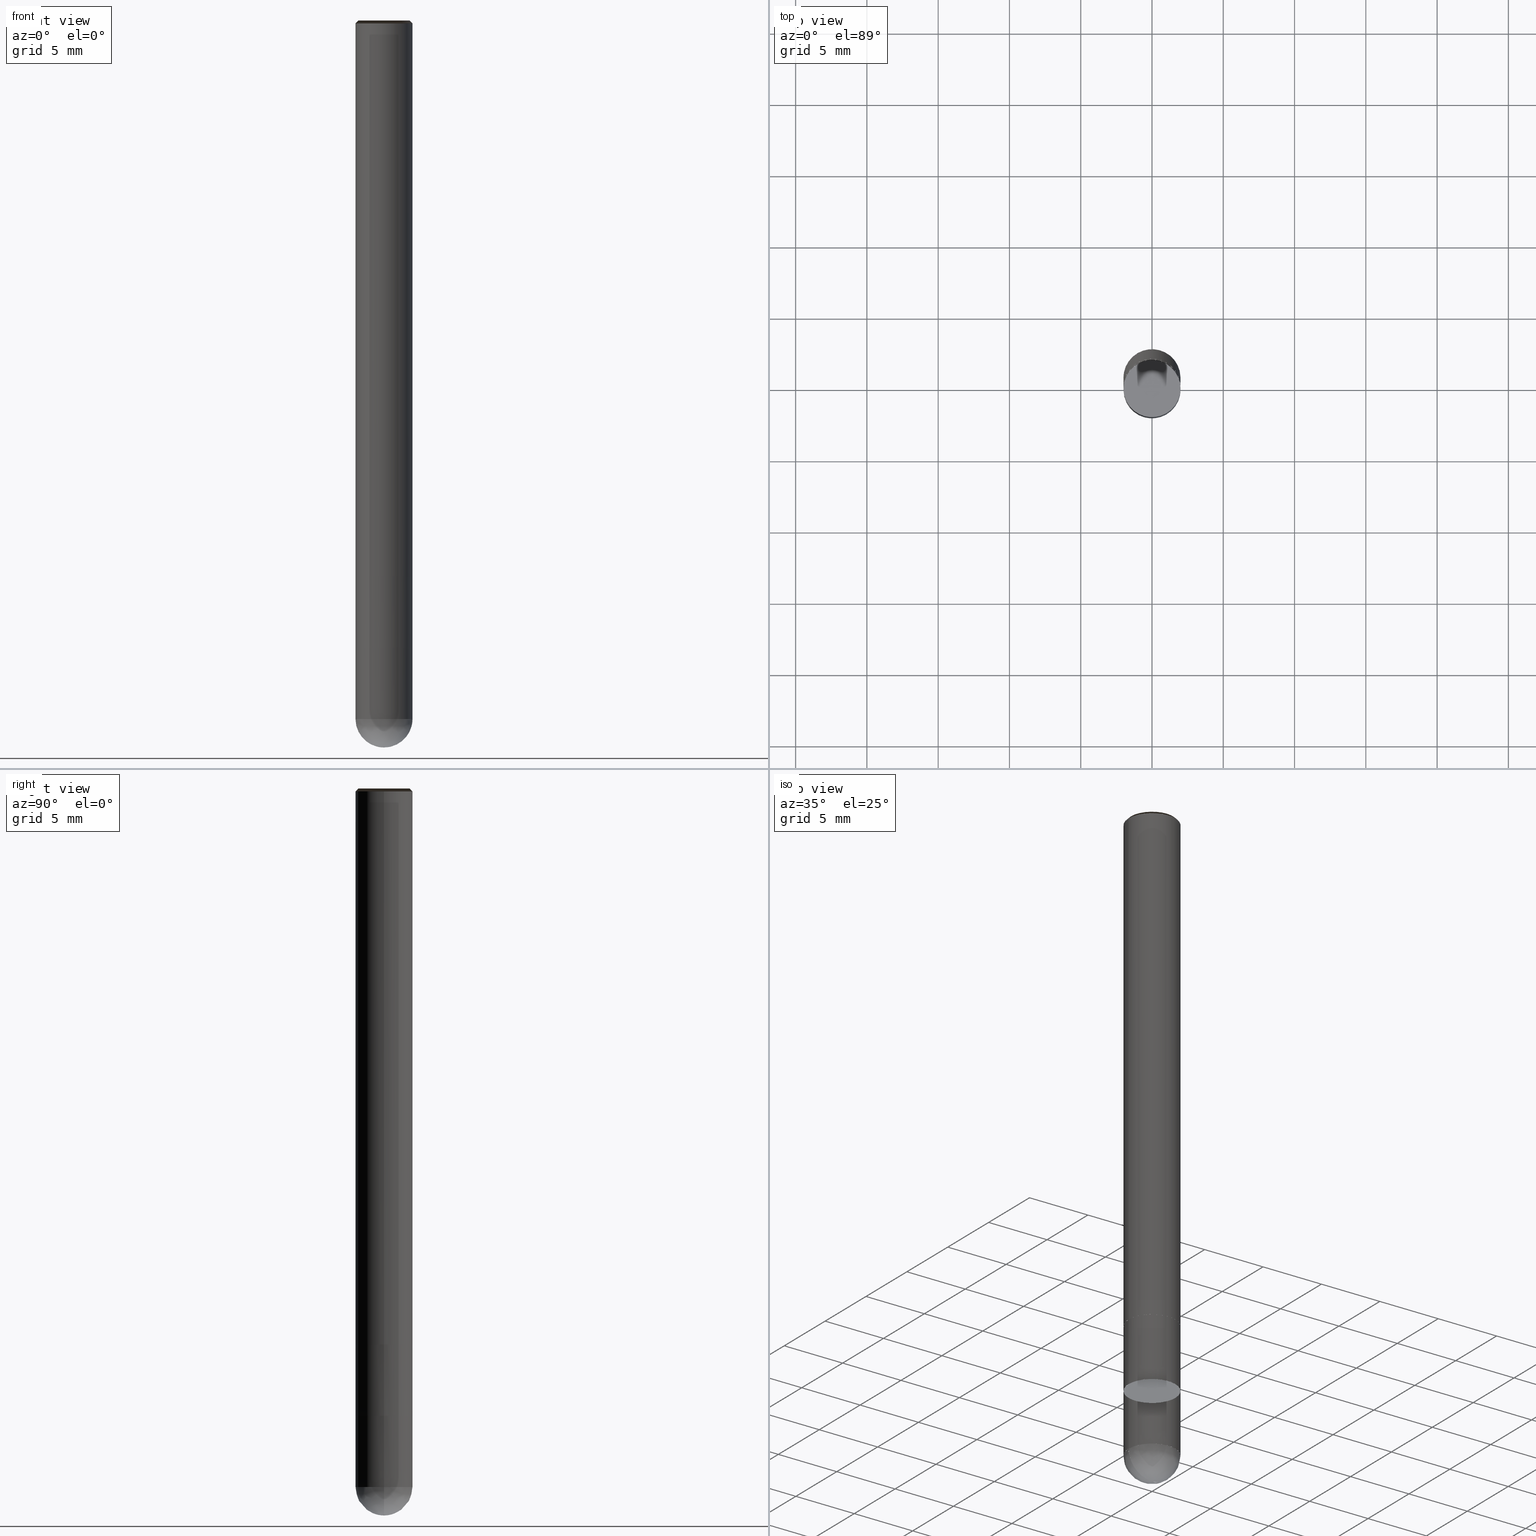
[diagram: canonical four-view strip — front | top / right | iso, engineering-drawing reading convention]
A machine part, canonical four-view strip (front | top / right | iso — engineering-drawing reading convention). The complete STEP part file that produces these views, byte-faithful:
ISO-10303-21;
HEADER;
/* Generated by ISBE GmbH (www.isbe.de) */
/* OPTION: using custom schema-name function */

FILE_DESCRIPTION(
/* description */ (''),
/* implementation_level */ '2;1');

FILE_NAME(
/*name*/ 'Drawing No  1240400   Issue  1',
/*time_stamp*/'2021-9-29T7:44:40',
/*author*/ ('ISBE GmbH'),
/*organization*/ ('ISBE GmbH'),
/*preprocessor_version*/ 'STEP IO v1.0',
/*originating_system*/ '',
/*authorisation*/ '');

FILE_SCHEMA (('AUTOMOTIVE_DESIGN'));
ENDSEC;

DATA;
#10=SHAPE_DEFINITION_REPRESENTATION(#11,#57);
#11=PRODUCT_DEFINITION_SHAPE('Document','',#13);
#12=PRODUCT_DEFINITION_CONTEXT('3D Mechanical Parts',#17,'design');
#13=PRODUCT_DEFINITION('A','First version',#14,#12);
#14=PRODUCT_DEFINITION_FORMATION_WITH_SPECIFIED_SOURCE('A','First version',#19,.MADE.);
#15=PRODUCT_RELATED_PRODUCT_CATEGORY('tool','tool',(#19));
#16=APPLICATION_PROTOCOL_DEFINITION('Draft International Standard', 'automotive_design',1999,#17);
#17=APPLICATION_CONTEXT('data for automotive mechanical design processes');
#18=PRODUCT_CONTEXT('3D Mechanical Parts',#17,'mechanical');
#19=PRODUCT('Document','Document','ISBE converted to STEP',(#18));
#20=(
LENGTH_UNIT()
NAMED_UNIT(*)
SI_UNIT(.MILLI.,.METRE.)
);
#21=(
NAMED_UNIT(*)
PLANE_ANGLE_UNIT()
SI_UNIT($,.RADIAN.)
);
#22=DIMENSIONAL_EXPONENTS(0.,0.,0.,0.,0.,0.,0.);
#23=PLANE_ANGLE_MEASURE_WITH_UNIT(PLANE_ANGLE_MEASURE(0.01745329252),#21);
#24=(
CONVERSION_BASED_UNIT('DEGREES',#23)
NAMED_UNIT(#22)
PLANE_ANGLE_UNIT()
);
#25=(
NAMED_UNIT(*)
SI_UNIT($,.STERADIAN.)
SOLID_ANGLE_UNIT()
);
#26=UNCERTAINTY_MEASURE_WITH_UNIT(LENGTH_MEASURE(0.001),#20, 'DISTANCE_ACCURACY_VALUE', 'Maximum model space distance between geometric entities at asserted connectivities');
#27=(
GEOMETRIC_REPRESENTATION_CONTEXT(3)
GLOBAL_UNCERTAINTY_ASSIGNED_CONTEXT((#26))
GLOBAL_UNIT_ASSIGNED_CONTEXT((#25,#24,#20))
REPRESENTATION_CONTEXT('ID1','3D')
);
#28=CARTESIAN_POINT('',(0.0,0.0,0.0));
#29=DIRECTION('',(1.0,0.0,0.0));
#30=DIRECTION('',(0.0,0.0,1.0));
#31=AXIS2_PLACEMENT_3D('',#28,#30,#29);
#32=CARTESIAN_POINT('',(0.0,0.0,0.0));
#33=DIRECTION('',(1.0,0.0,0.0));
#34=DIRECTION('',(0.0,0.0,1.0));
#35=AXIS2_PLACEMENT_3D('',#32,#34,#33);
#36=CARTESIAN_POINT('',(0.0,0.0,0.0));
#37=DIRECTION('',(1.0,0.0,0.0));
#38=DIRECTION('',(0.0,0.0,1.0));
#39=AXIS2_PLACEMENT_3D('',#36,#38,#37);
#40=CARTESIAN_POINT('',(0.0,0.0,0.0));
#41=DIRECTION('',(0.0,0.0,1.0));
#42=DIRECTION('',(1.0,0.0,0.0));
#43=AXIS2_PLACEMENT_3D('MCS',#40,#42,#41);
#44=CARTESIAN_POINT('',(0.0,0.0,39.0));
#45=DIRECTION('',(0.0,0.0,1.0));
#46=DIRECTION('',(1.0,0.0,0.0));
#47=AXIS2_PLACEMENT_3D('PCS',#44,#46,#45);
#48=CARTESIAN_POINT('',(0.0,0.0,-12.0));
#49=DIRECTION('',(0.0,0.0,1.0));
#50=DIRECTION('',(1.0,0.0,0.0));
#51=AXIS2_PLACEMENT_3D('CIP',#48,#50,#49);
#52=CARTESIAN_POINT('',(0.0,-2.0,-12.0));
#53=DIRECTION('',(0.0,0.0,1.0));
#54=DIRECTION('',(1.0,0.0,0.0));
#55=AXIS2_PLACEMENT_3D('CRP',#52,#54,#53);
#57=SHAPE_REPRESENTATION('Document',(#31,#35,#39,#43,#47,#51,#55),#27);
#58=DIRECTION('',(1.0,0.0,0.0));
#59=DIRECTION('',(0.0,0.0,1.0));
#60=CARTESIAN_POINT('',(-0.01999898138,-0.000201850881,-11.999679401865));
#61=CARTESIAN_POINT('',(-0.019371841542,-0.0611060247,-11.998972432401));
#62=CARTESIAN_POINT('',(-0.018582915878,-0.126785833558,-11.995890785501));
#63=CARTESIAN_POINT('',(-0.017578842118,-0.191239824115,-11.990758225898));
#64=CARTESIAN_POINT('',(-0.016239636919,-0.255238218366,-11.983580027646));
#65=CARTESIAN_POINT('',(-0.014453844092,-0.318872376304,-11.974363566829));
#66=CARTESIAN_POINT('',(-0.012113404118,-0.382125307653,-11.963118313982));
#67=CARTESIAN_POINT('',(-0.009113459438,-0.444948546522,-11.949855824364));
#68=CARTESIAN_POINT('',(-0.005352734971,-0.507280928068,-11.934589726078));
#69=CARTESIAN_POINT('',(-0.000734037573,-0.569054699836,-11.917335706073));
#70=CARTESIAN_POINT('',(0.004835216595,-0.630197887131,-11.898111494021));
#71=CARTESIAN_POINT('',(0.011442472882,-0.690635325679,-11.8769368441));
#72=CARTESIAN_POINT('',(0.019169517323,-0.750289163863,-11.853833514692));
#73=CARTESIAN_POINT('',(0.028091969592,-0.80907914367,-11.828825246032));
#74=CARTESIAN_POINT('',(0.03827879361,-0.866922793703,-11.801937735805));
#75=CARTESIAN_POINT('',(0.049791829162,-0.923735597184,-11.773198612746));
#76=CARTESIAN_POINT('',(0.062685347743,-0.97943116683,-11.742637408247));
#77=CARTESIAN_POINT('',(0.077005635852,-1.033921443614,-11.710285526011));
#78=CARTESIAN_POINT('',(0.092790609027,-1.087116928684,-11.676176209784));
#79=CARTESIAN_POINT('',(0.110069459952,-1.138926953383,-11.640344509194));
#80=CARTESIAN_POINT('',(0.128862343995,-1.189259989673,-11.602827243736));
#81=CARTESIAN_POINT('',(0.149180105555,-1.238024001461,-11.563662964936));
#82=CARTESIAN_POINT('',(0.171024048528,-1.285126836059,-11.522891916738));
#83=CARTESIAN_POINT('',(0.194385754122,-1.330476653977,-11.480555994151));
#84=CARTESIAN_POINT('',(0.219246949088,-1.373982394419,-11.436698700195));
#85=CARTESIAN_POINT('',(0.245579427234,-1.41555427309,-11.391365101207));
#86=CARTESIAN_POINT('',(0.273345026838,-1.455104308329,-11.344601780523));
#87=CARTESIAN_POINT('',(0.302495666221,-1.492546870951,-11.296456790616));
#88=CARTESIAN_POINT('',(0.332973439389,-1.527799252708,-11.246979603717));
#89=CARTESIAN_POINT('',(0.364710773218,-1.560782247836,-11.196221060982));
#90=CARTESIAN_POINT('',(0.397630647142,-1.591420741758,-11.144233320244));
#91=CARTESIAN_POINT('',(0.431646875815,-1.619644300717,-11.091069802421));
#92=CARTESIAN_POINT('',(0.466664454604,-1.645387755908,-11.036785136621));
#93=CARTESIAN_POINT('',(0.502579967198,-1.668591775478,-10.981435104008));
#94=CARTESIAN_POINT('',(0.539282053968,-1.689203417742,-10.925076580482));
#95=CARTESIAN_POINT('',(0.576651939074,-1.707176658955,-10.867767478235));
#96=CARTESIAN_POINT('',(0.61456401367,-1.722472889083,-10.809566686245));
#97=CARTESIAN_POINT('',(0.652886471892,-1.735061369236,-10.750534009759));
#98=CARTESIAN_POINT('',(0.691481995705,-1.74491964467,-10.690730108843));
#99=CARTESIAN_POINT('',(0.730208484048,-1.752033907651,-10.630216436047));
#100=CARTESIAN_POINT('',(0.768919821176,-1.756399304938,-10.569055173262));
#101=CARTESIAN_POINT('',(0.807466678542,-1.758020185121,-10.507309167819));
#102=CARTESIAN_POINT('',(0.845697344116,-1.756910281705,-10.445041867913));
#103=CARTESIAN_POINT('',(0.883458572612,-1.753092828452,-10.382317257403));
#104=CARTESIAN_POINT('',(0.920596449785,-1.746600604221,-10.319199790067));
#105=CARTESIAN_POINT('',(0.956957263684,-1.737475905318,-10.255754323369));
#106=CARTESIAN_POINT('',(0.992388375618,-1.725770444155,-10.192046051815));
#107=CARTESIAN_POINT('',(1.02673908347,-1.711545173848,-10.128140439961));
#108=CARTESIAN_POINT('',(1.059861470061,-1.694870039201,-10.064103155143));
#109=CARTESIAN_POINT('',(1.091611229346,-1.67582365539,-10.0));
#110=CARTESIAN_POINT('',(1.12971572387,-1.650376436829,-9.920634920635));
#111=CARTESIAN_POINT('',(1.167227255058,-1.624062971393,-9.84126984127));
#112=CARTESIAN_POINT('',(1.20412613392,-1.59689707045,-9.761904761905));
#113=CARTESIAN_POINT('',(1.240392993033,-1.568892992793,-9.68253968254));
#114=CARTESIAN_POINT('',(1.276008796708,-1.540065437156,-9.603174603175));
#115=CARTESIAN_POINT('',(1.31095485098,-1.510429534501,-9.52380952381));
#116=CARTESIAN_POINT('',(1.34521281342,-1.480000840071,-9.444444444444));
#117=CARTESIAN_POINT('',(1.378764702768,-1.448795325228,-9.365079365079));
#118=CARTESIAN_POINT('',(1.41159290836,-1.416829369073,-9.285714285714));
#119=CARTESIAN_POINT('',(1.443680199384,-1.384119749844,-9.206349206349));
#120=CARTESIAN_POINT('',(1.475009733914,-1.350683636112,-9.126984126984));
#121=CARTESIAN_POINT('',(1.505565067755,-1.31653857777,-9.047619047619));
#122=CARTESIAN_POINT('',(1.535330163075,-1.281702496819,-8.968253968254));
#123=CARTESIAN_POINT('',(1.564289396818,-1.246193677966,-8.888888888889));
#124=CARTESIAN_POINT('',(1.59242756891,-1.21003075902,-8.809523809524));
#125=CARTESIAN_POINT('',(1.619729910233,-1.173232721116,-8.730158730159));
#126=CARTESIAN_POINT('',(1.646182090379,-1.135818878746,-8.650793650794));
#127=CARTESIAN_POINT('',(1.671770225171,-1.097808869627,-8.571428571429));
#128=CARTESIAN_POINT('',(1.696480883951,-1.05922264439,-8.492063492063));
#129=CARTESIAN_POINT('',(1.720301096629,-1.02008045611,-8.412698412698));
#130=CARTESIAN_POINT('',(1.74321836049,-0.980402849675,-8.333333333333));
#131=CARTESIAN_POINT('',(1.765220646759,-0.940210651001,-8.253968253968));
#132=CARTESIAN_POINT('',(1.786296406912,-0.899524956103,-8.174603174603));
#133=CARTESIAN_POINT('',(1.806434578739,-0.858367120022,-8.095238095238));
#134=CARTESIAN_POINT('',(1.825624592149,-0.816758745617,-8.015873015873));
#135=CARTESIAN_POINT('',(1.843856374719,-0.774721672221,-7.936507936508));
#136=CARTESIAN_POINT('',(1.861120356981,-0.732277964185,-7.857142857143));
#137=CARTESIAN_POINT('',(1.877407477444,-0.689449899294,-7.777777777778));
#138=CARTESIAN_POINT('',(1.892709187352,-0.646259957071,-7.698412698413));
#139=CARTESIAN_POINT('',(1.907017455168,-0.602730806982,-7.619047619048));
#140=CARTESIAN_POINT('',(1.920324770792,-0.558885296536,-7.539682539683));
#141=CARTESIAN_POINT('',(1.932624149501,-0.514746439293,-7.460317460317));
#142=CARTESIAN_POINT('',(1.943909135619,-0.470337402784,-7.380952380952));
#143=CARTESIAN_POINT('',(1.9541738059,-0.425681496351,-7.301587301587));
#144=CARTESIAN_POINT('',(1.96341277264,-0.380802158912,-7.222222222222));
#145=CARTESIAN_POINT('',(1.971621186507,-0.335722946662,-7.142857142857));
#146=CARTESIAN_POINT('',(1.978794739082,-0.290467520702,-7.063492063492));
#147=CARTESIAN_POINT('',(1.984929665121,-0.245059634626,-6.984126984127));
#148=CARTESIAN_POINT('',(1.990022744535,-0.199523122052,-6.904761904762));
#149=CARTESIAN_POINT('',(1.994071304077,-0.153881884109,-6.825396825397));
#150=CARTESIAN_POINT('',(1.997073218745,-0.108159876895,-6.746031746032));
#151=CARTESIAN_POINT('',(1.9990269129,-0.062381098902,-6.666666666667));
#152=CARTESIAN_POINT('',(1.99993136109,-0.016569578421,-6.587301587302));
#153=CARTESIAN_POINT('',(1.999786088589,0.029250639074,-6.507936507937));
#154=CARTESIAN_POINT('',(1.998591171648,0.075055503541,-6.428571428571));
#155=CARTESIAN_POINT('',(1.996347237452,0.120820972999,-6.349206349206));
#156=CARTESIAN_POINT('',(1.993055463795,0.166523026142,-6.269841269841));
#157=CARTESIAN_POINT('',(1.988717578457,0.212137674953,-6.190476190476));
#158=CARTESIAN_POINT('',(1.983335858301,0.25764097729,-6.111111111111));
#159=CARTESIAN_POINT('',(1.976913128074,0.303009049453,-6.031746031746));
#160=CARTESIAN_POINT('',(1.969452758928,0.348218078723,-5.952380952381));
#161=CARTESIAN_POINT('',(1.960958666651,0.39324433586,-5.873015873016));
#162=CARTESIAN_POINT('',(1.951435309607,0.438064187555,-5.793650793651));
#163=CARTESIAN_POINT('',(1.940887686401,0.482654108838,-5.714285714286));
#164=CARTESIAN_POINT('',(1.929321333251,0.526990695425,-5.634920634921));
#165=CARTESIAN_POINT('',(1.916742321085,0.571050676,-5.555555555556));
#166=CARTESIAN_POINT('',(1.903157252356,0.614810924434,-5.47619047619));
#167=CARTESIAN_POINT('',(1.888573257572,0.658248471918,-5.396825396825));
#168=CARTESIAN_POINT('',(1.872997991556,0.701340519025,-5.31746031746));
#169=CARTESIAN_POINT('',(1.856439629428,0.744064447672,-5.238095238095));
#170=CARTESIAN_POINT('',(1.838906862314,0.786397832992,-5.15873015873));
#171=CARTESIAN_POINT('',(1.820408892784,0.828318455108,-5.079365079365));
#172=CARTESIAN_POINT('',(1.800955430022,0.869804310793,-5.0));
#173=CARTESIAN_POINT('',(0.01999898138,0.000201850881,-11.999679401865));
#174=CARTESIAN_POINT('',(0.019371841542,0.0611060247,-11.998972432401));
#175=CARTESIAN_POINT('',(0.018582915878,0.126785833558,-11.995890785501));
#176=CARTESIAN_POINT('',(0.017578842118,0.191239824115,-11.990758225898));
#177=CARTESIAN_POINT('',(0.016239636919,0.255238218366,-11.983580027646));
#178=CARTESIAN_POINT('',(0.014453844092,0.318872376304,-11.974363566829));
#179=CARTESIAN_POINT('',(0.012113404118,0.382125307653,-11.963118313982));
#180=CARTESIAN_POINT('',(0.009113459438,0.444948546522,-11.949855824364));
#181=CARTESIAN_POINT('',(0.005352734971,0.507280928068,-11.934589726078));
#182=CARTESIAN_POINT('',(0.000734037573,0.569054699836,-11.917335706073));
#183=CARTESIAN_POINT('',(-0.004835216595,0.630197887131,-11.898111494021));
#184=CARTESIAN_POINT('',(-0.011442472882,0.690635325679,-11.8769368441));
#185=CARTESIAN_POINT('',(-0.019169517323,0.750289163863,-11.853833514692));
#186=CARTESIAN_POINT('',(-0.028091969592,0.80907914367,-11.828825246032));
#187=CARTESIAN_POINT('',(-0.03827879361,0.866922793703,-11.801937735805));
#188=CARTESIAN_POINT('',(-0.049791829162,0.923735597184,-11.773198612746));
#189=CARTESIAN_POINT('',(-0.062685347743,0.97943116683,-11.742637408247));
#190=CARTESIAN_POINT('',(-0.077005635852,1.033921443614,-11.710285526011));
#191=CARTESIAN_POINT('',(-0.092790609027,1.087116928684,-11.676176209784));
#192=CARTESIAN_POINT('',(-0.110069459952,1.138926953383,-11.640344509194));
#193=CARTESIAN_POINT('',(-0.128862343995,1.189259989673,-11.602827243736));
#194=CARTESIAN_POINT('',(-0.149180105555,1.238024001461,-11.563662964936));
#195=CARTESIAN_POINT('',(-0.171024048528,1.285126836059,-11.522891916738));
#196=CARTESIAN_POINT('',(-0.194385754122,1.330476653977,-11.480555994151));
#197=CARTESIAN_POINT('',(-0.219246949088,1.373982394419,-11.436698700195));
#198=CARTESIAN_POINT('',(-0.245579427234,1.41555427309,-11.391365101207));
#199=CARTESIAN_POINT('',(-0.273345026838,1.455104308329,-11.344601780523));
#200=CARTESIAN_POINT('',(-0.302495666221,1.492546870951,-11.296456790616));
#201=CARTESIAN_POINT('',(-0.332973439389,1.527799252708,-11.246979603717));
#202=CARTESIAN_POINT('',(-0.364710773218,1.560782247836,-11.196221060982));
#203=CARTESIAN_POINT('',(-0.397630647142,1.591420741758,-11.144233320244));
#204=CARTESIAN_POINT('',(-0.431646875815,1.619644300717,-11.091069802421));
#205=CARTESIAN_POINT('',(-0.466664454604,1.645387755908,-11.036785136621));
#206=CARTESIAN_POINT('',(-0.502579967198,1.668591775478,-10.981435104008));
#207=CARTESIAN_POINT('',(-0.539282053968,1.689203417742,-10.925076580482));
#208=CARTESIAN_POINT('',(-0.576651939074,1.707176658955,-10.867767478235));
#209=CARTESIAN_POINT('',(-0.61456401367,1.722472889083,-10.809566686245));
#210=CARTESIAN_POINT('',(-0.652886471892,1.735061369236,-10.750534009759));
#211=CARTESIAN_POINT('',(-0.691481995705,1.74491964467,-10.690730108843));
#212=CARTESIAN_POINT('',(-0.730208484048,1.752033907651,-10.630216436047));
#213=CARTESIAN_POINT('',(-0.768919821176,1.756399304938,-10.569055173262));
#214=CARTESIAN_POINT('',(-0.807466678542,1.758020185121,-10.507309167819));
#215=CARTESIAN_POINT('',(-0.845697344116,1.756910281705,-10.445041867913));
#216=CARTESIAN_POINT('',(-0.883458572612,1.753092828452,-10.382317257403));
#217=CARTESIAN_POINT('',(-0.920596449785,1.746600604221,-10.319199790067));
#218=CARTESIAN_POINT('',(-0.956957263684,1.737475905318,-10.255754323369));
#219=CARTESIAN_POINT('',(-0.992388375618,1.725770444155,-10.192046051815));
#220=CARTESIAN_POINT('',(-1.02673908347,1.711545173848,-10.128140439961));
#221=CARTESIAN_POINT('',(-1.059861470061,1.694870039201,-10.064103155143));
#222=CARTESIAN_POINT('',(-1.091611229346,1.67582365539,-10.0));
#223=CARTESIAN_POINT('',(-1.12971572387,1.650376436829,-9.920634920635));
#224=CARTESIAN_POINT('',(-1.167227255058,1.624062971393,-9.84126984127));
#225=CARTESIAN_POINT('',(-1.20412613392,1.59689707045,-9.761904761905));
#226=CARTESIAN_POINT('',(-1.240392993033,1.568892992793,-9.68253968254));
#227=CARTESIAN_POINT('',(-1.276008796708,1.540065437156,-9.603174603175));
#228=CARTESIAN_POINT('',(-1.31095485098,1.510429534501,-9.52380952381));
#229=CARTESIAN_POINT('',(-1.34521281342,1.480000840071,-9.444444444444));
#230=CARTESIAN_POINT('',(-1.378764702768,1.448795325228,-9.365079365079));
#231=CARTESIAN_POINT('',(-1.41159290836,1.416829369073,-9.285714285714));
#232=CARTESIAN_POINT('',(-1.443680199384,1.384119749844,-9.206349206349));
#233=CARTESIAN_POINT('',(-1.475009733914,1.350683636112,-9.126984126984));
#234=CARTESIAN_POINT('',(-1.505565067755,1.31653857777,-9.047619047619));
#235=CARTESIAN_POINT('',(-1.535330163075,1.281702496819,-8.968253968254));
#236=CARTESIAN_POINT('',(-1.564289396818,1.246193677966,-8.888888888889));
#237=CARTESIAN_POINT('',(-1.59242756891,1.21003075902,-8.809523809524));
#238=CARTESIAN_POINT('',(-1.619729910233,1.173232721116,-8.730158730159));
#239=CARTESIAN_POINT('',(-1.646182090379,1.135818878746,-8.650793650794));
#240=CARTESIAN_POINT('',(-1.671770225171,1.097808869627,-8.571428571429));
#241=CARTESIAN_POINT('',(-1.696480883951,1.05922264439,-8.492063492063));
#242=CARTESIAN_POINT('',(-1.720301096629,1.02008045611,-8.412698412698));
#243=CARTESIAN_POINT('',(-1.74321836049,0.980402849675,-8.333333333333));
#244=CARTESIAN_POINT('',(-1.765220646759,0.940210651001,-8.253968253968));
#245=CARTESIAN_POINT('',(-1.786296406912,0.899524956103,-8.174603174603));
#246=CARTESIAN_POINT('',(-1.806434578739,0.858367120022,-8.095238095238));
#247=CARTESIAN_POINT('',(-1.825624592149,0.816758745617,-8.015873015873));
#248=CARTESIAN_POINT('',(-1.843856374719,0.774721672221,-7.936507936508));
#249=CARTESIAN_POINT('',(-1.861120356981,0.732277964185,-7.857142857143));
#250=CARTESIAN_POINT('',(-1.877407477444,0.689449899294,-7.777777777778));
#251=CARTESIAN_POINT('',(-1.892709187352,0.646259957071,-7.698412698413));
#252=CARTESIAN_POINT('',(-1.907017455168,0.602730806982,-7.619047619048));
#253=CARTESIAN_POINT('',(-1.920324770792,0.558885296536,-7.539682539683));
#254=CARTESIAN_POINT('',(-1.932624149501,0.514746439293,-7.460317460317));
#255=CARTESIAN_POINT('',(-1.943909135619,0.470337402784,-7.380952380952));
#256=CARTESIAN_POINT('',(-1.9541738059,0.425681496351,-7.301587301587));
#257=CARTESIAN_POINT('',(-1.96341277264,0.380802158912,-7.222222222222));
#258=CARTESIAN_POINT('',(-1.971621186507,0.335722946662,-7.142857142857));
#259=CARTESIAN_POINT('',(-1.978794739082,0.290467520702,-7.063492063492));
#260=CARTESIAN_POINT('',(-1.984929665121,0.245059634626,-6.984126984127));
#261=CARTESIAN_POINT('',(-1.990022744535,0.199523122052,-6.904761904762));
#262=CARTESIAN_POINT('',(-1.994071304077,0.153881884109,-6.825396825397));
#263=CARTESIAN_POINT('',(-1.997073218745,0.108159876895,-6.746031746032));
#264=CARTESIAN_POINT('',(-1.9990269129,0.062381098902,-6.666666666667));
#265=CARTESIAN_POINT('',(-1.99993136109,0.016569578421,-6.587301587302));
#266=CARTESIAN_POINT('',(-1.999786088589,-0.029250639074,-6.507936507937));
#267=CARTESIAN_POINT('',(-1.998591171648,-0.075055503541,-6.428571428571));
#268=CARTESIAN_POINT('',(-1.996347237452,-0.120820972999,-6.349206349206));
#269=CARTESIAN_POINT('',(-1.993055463795,-0.166523026142,-6.269841269841));
#270=CARTESIAN_POINT('',(-1.988717578457,-0.212137674953,-6.190476190476));
#271=CARTESIAN_POINT('',(-1.983335858301,-0.25764097729,-6.111111111111));
#272=CARTESIAN_POINT('',(-1.976913128074,-0.303009049453,-6.031746031746));
#273=CARTESIAN_POINT('',(-1.969452758928,-0.348218078723,-5.952380952381));
#274=CARTESIAN_POINT('',(-1.960958666651,-0.39324433586,-5.873015873016));
#275=CARTESIAN_POINT('',(-1.951435309607,-0.438064187555,-5.793650793651));
#276=CARTESIAN_POINT('',(-1.940887686401,-0.482654108838,-5.714285714286));
#277=CARTESIAN_POINT('',(-1.929321333251,-0.526990695425,-5.634920634921));
#278=CARTESIAN_POINT('',(-1.916742321085,-0.571050676,-5.555555555556));
#279=CARTESIAN_POINT('',(-1.903157252356,-0.614810924434,-5.47619047619));
#280=CARTESIAN_POINT('',(-1.888573257572,-0.658248471918,-5.396825396825));
#281=CARTESIAN_POINT('',(-1.872997991556,-0.701340519025,-5.31746031746));
#282=CARTESIAN_POINT('',(-1.856439629428,-0.744064447672,-5.238095238095));
#283=CARTESIAN_POINT('',(-1.838906862314,-0.786397832992,-5.15873015873));
#284=CARTESIAN_POINT('',(-1.820408892784,-0.828318455108,-5.079365079365));
#285=CARTESIAN_POINT('',(-1.800955430022,-0.869804310793,-5.0));
#286=CARTESIAN_POINT('',(0.0,0.0,-12.0));
#287=CARTESIAN_POINT('',(2.0,0.0,-12.0));
#288=CARTESIAN_POINT('',(2.0,2.0,-12.0));
#289=CARTESIAN_POINT('',(0.0,2.0,-12.0));
#290=CARTESIAN_POINT('',(-2.0,2.0,-12.0));
#291=CARTESIAN_POINT('',(-2.0,0.0,-12.0));
#292=CARTESIAN_POINT('',(2.0,0.0,-10.0));
#293=CARTESIAN_POINT('',(2.0,2.0,-10.0));
#294=CARTESIAN_POINT('',(0.0,2.0,-10.0));
#295=CARTESIAN_POINT('',(-2.0,2.0,-10.0));
#296=CARTESIAN_POINT('',(-2.0,0.0,-10.0));
#297=CARTESIAN_POINT('',(2.0,0.0,-5.0));
#298=CARTESIAN_POINT('',(2.0,2.0,-5.0));
#299=CARTESIAN_POINT('',(0.0,2.0,-5.0));
#300=CARTESIAN_POINT('',(-2.0,2.0,-5.0));
#301=CARTESIAN_POINT('',(-2.0,0.0,-5.0));
#302=CARTESIAN_POINT('',(0.0,0.0,-5.0));
#303=CARTESIAN_POINT('',(-2.0,-2.0,-12.0));
#304=CARTESIAN_POINT('',(0.0,-2.0,-12.0));
#305=CARTESIAN_POINT('',(2.0,-2.0,-12.0));
#306=CARTESIAN_POINT('',(-2.0,-2.0,-10.0));
#307=CARTESIAN_POINT('',(0.0,-2.0,-10.0));
#308=CARTESIAN_POINT('',(2.0,-2.0,-10.0));
#309=CARTESIAN_POINT('',(-2.0,-2.0,-5.0));
#310=CARTESIAN_POINT('',(0.0,-2.0,-5.0));
#311=CARTESIAN_POINT('',(2.0,-2.0,-5.0));
#312=CARTESIAN_POINT('',(2.0,0.0,0.0));
#313=CARTESIAN_POINT('',(2.0,2.0,0.0));
#314=CARTESIAN_POINT('',(0.0,2.0,0.0));
#315=CARTESIAN_POINT('',(-2.0,2.0,0.0));
#316=CARTESIAN_POINT('',(-2.0,0.0,0.0));
#317=CARTESIAN_POINT('',(2.0,0.0,38.8));
#318=CARTESIAN_POINT('',(2.0,2.0,38.8));
#319=CARTESIAN_POINT('',(0.0,2.0,38.8));
#320=CARTESIAN_POINT('',(-2.0,2.0,38.8));
#321=CARTESIAN_POINT('',(-2.0,0.0,38.8));
#322=CARTESIAN_POINT('',(1.8,0.0,39.0));
#323=CARTESIAN_POINT('',(1.8,1.8,39.0));
#324=CARTESIAN_POINT('',(0.0,1.8,39.0));
#325=CARTESIAN_POINT('',(-1.8,1.8,39.0));
#326=CARTESIAN_POINT('',(-1.8,0.0,39.0));
#327=CARTESIAN_POINT('',(0.0,0.0,39.0));
#328=CARTESIAN_POINT('',(-2.0,-2.0,0.0));
#329=CARTESIAN_POINT('',(0.0,-2.0,0.0));
#330=CARTESIAN_POINT('',(2.0,-2.0,0.0));
#331=CARTESIAN_POINT('',(-2.0,-2.0,38.8));
#332=CARTESIAN_POINT('',(0.0,-2.0,38.8));
#333=CARTESIAN_POINT('',(2.0,-2.0,38.8));
#334=CARTESIAN_POINT('',(-1.8,-1.8,39.0));
#335=CARTESIAN_POINT('',(0.0,-1.8,39.0));
#336=CARTESIAN_POINT('',(1.8,-1.8,39.0));
#337=(
BOUNDED_CURVE()
B_SPLINE_CURVE(1,(#60,#61,#62,#63,#64,#65,#66,#67,#68,#69,#70,#71,#72,#73,#74,#75,#76,#77,#78,#79,#80,#81,#82,#83,#84,#85,#86,#87,#88,#89,#90,#91,#92,#93,#94,#95,#96,#97,#98,#99,#100,#101,#102,#103,#104,#105,#106,#107,#108,#109,#110,#111,#112,#113,#114,#115,#116,#117,#118,#119,#120,#121,#122,#123,#124,#125,#126,#127,#128,#129,#130,#131,#132,#133,#134,#135,#136,#137,#138,#139,#140,#141,#142,#143,#144,#145,#146,#147,#148,#149,#150,#151,#152,#153,#154,#155,#156,#157,#158,#159,#160,#161,#162,#163,#164,#165,#166,#167,#168,#169,#170,#171,#172),.UNSPECIFIED.,.F.,.F.)
B_SPLINE_CURVE_WITH_KNOTS((2,1,1,1,1,1,1,1,1,1,1,1,1,1,1,1,1,1,1,1,1,1,1,1,1,1,1,1,1,1,1,1,1,1,1,1,1,1,1,1,1,1,1,1,1,1,1,1,1,1,1,1,1,1,1,1,1,1,1,1,1,1,1,1,1,1,1,1,1,1,1,1,1,1,1,1,1,1,1,1,1,1,1,1,1,1,1,1,1,1,1,1,1,1,1,1,1,1,1,1,1,1,1,1,1,1,1,1,1,1,1,1,2),
(0.0,0.00668916786,0.013910434911,0.021011893315,0.028085655729,0.035149457838,0.042209356376,0.049268217894,0.056327822524,0.063389570626,0.070454770876,0.077524773997,0.084601039581,0.091685169401,0.098778921452,0.105884211393,0.113003104805,0.120137802231,0.127290618276,0.134463955759,0.14166027578,0.148882064516,0.156131797584,0.163411902785,0.170724722071,0.178072473543,0.185457214288,0.192880804793,0.200344875606,0.207850796875,0.215399651254,0.222992210607,0.230628916837,0.238309867046,0.246034803181,0.253803106181,0.261613794625,0.26946552775,0.277356612702,0.285285015805,0.29324837761,0.30124403145,0.30926902521,0.317320146008,0.325393947467,0.333486779256,0.341594818581,0.3497141033,0.357840566335,0.365970071067,0.376034038193,0.386098005319,0.396161972445,0.406225939571,0.416289906697,0.426353873823,0.436417840949,0.446481808075,0.456545775201,0.466609742326,0.476673709452,0.486737676578,0.496801643704,0.50686561083,0.516929577956,0.526993545082,0.537057512208,0.547121479334,0.55718544646,0.567249413586,0.577313380712,0.587377347837,0.597441314963,0.607505282089,0.617569249215,0.627633216341,0.637697183467,0.647761150593,0.657825117719,0.667889084845,0.677953051971,0.688017019097,0.698080986223,0.708144953348,0.718208920474,0.7282728876,0.738336854726,0.748400821852,0.758464788978,0.768528756104,0.77859272323,0.788656690356,0.798720657482,0.808784624608,0.818848591734,0.828912558859,0.838976525985,0.849040493111,0.859104460237,0.869168427363,0.879232394489,0.889296361615,0.899360328741,0.909424295867,0.919488262993,0.929552230119,0.939616197245,0.94968016437,0.959744131496,0.969808098622,0.979872065748,0.989936032874,1.0),.UNSPECIFIED.)
CURVE()
GEOMETRIC_REPRESENTATION_ITEM()
RATIONAL_B_SPLINE_CURVE((1.0,1.0,1.0,1.0,1.0,1.0,1.0,1.0,1.0,1.0,1.0,1.0,1.0,1.0,1.0,1.0,1.0,1.0,1.0,1.0,1.0,1.0,1.0,1.0,1.0,1.0,1.0,1.0,1.0,1.0,1.0,1.0,1.0,1.0,1.0,1.0,1.0,1.0,1.0,1.0,1.0,1.0,1.0,1.0,1.0,1.0,1.0,1.0,1.0,1.0,1.0,1.0,1.0,1.0,1.0,1.0,1.0,1.0,1.0,1.0,1.0,1.0,1.0,1.0,1.0,1.0,1.0,1.0,1.0,1.0,1.0,1.0,1.0,1.0,1.0,1.0,1.0,1.0,1.0,1.0,1.0,1.0,1.0,1.0,1.0,1.0,1.0,1.0,1.0,1.0,1.0,1.0,1.0,1.0,1.0,1.0,1.0,1.0,1.0,1.0,1.0,1.0,1.0,1.0,1.0,1.0,1.0,1.0,1.0,1.0,1.0,1.0,1.0))
REPRESENTATION_ITEM('')
);
#338=(
BOUNDED_CURVE()
B_SPLINE_CURVE(1,(#173,#174,#175,#176,#177,#178,#179,#180,#181,#182,#183,#184,#185,#186,#187,#188,#189,#190,#191,#192,#193,#194,#195,#196,#197,#198,#199,#200,#201,#202,#203,#204,#205,#206,#207,#208,#209,#210,#211,#212,#213,#214,#215,#216,#217,#218,#219,#220,#221,#222,#223,#224,#225,#226,#227,#228,#229,#230,#231,#232,#233,#234,#235,#236,#237,#238,#239,#240,#241,#242,#243,#244,#245,#246,#247,#248,#249,#250,#251,#252,#253,#254,#255,#256,#257,#258,#259,#260,#261,#262,#263,#264,#265,#266,#267,#268,#269,#270,#271,#272,#273,#274,#275,#276,#277,#278,#279,#280,#281,#282,#283,#284,#285),.UNSPECIFIED.,.F.,.F.)
B_SPLINE_CURVE_WITH_KNOTS((2,1,1,1,1,1,1,1,1,1,1,1,1,1,1,1,1,1,1,1,1,1,1,1,1,1,1,1,1,1,1,1,1,1,1,1,1,1,1,1,1,1,1,1,1,1,1,1,1,1,1,1,1,1,1,1,1,1,1,1,1,1,1,1,1,1,1,1,1,1,1,1,1,1,1,1,1,1,1,1,1,1,1,1,1,1,1,1,1,1,1,1,1,1,1,1,1,1,1,1,1,1,1,1,1,1,1,1,1,1,1,1,2),
(0.0,0.00668916786,0.013910434911,0.021011893315,0.028085655729,0.035149457838,0.042209356376,0.049268217894,0.056327822524,0.063389570626,0.070454770876,0.077524773997,0.084601039581,0.091685169401,0.098778921452,0.105884211393,0.113003104805,0.120137802231,0.127290618276,0.134463955759,0.14166027578,0.148882064516,0.156131797584,0.163411902785,0.170724722071,0.178072473543,0.185457214288,0.192880804793,0.200344875606,0.207850796875,0.215399651254,0.222992210607,0.230628916837,0.238309867046,0.246034803181,0.253803106181,0.261613794625,0.26946552775,0.277356612702,0.285285015805,0.29324837761,0.30124403145,0.30926902521,0.317320146008,0.325393947467,0.333486779256,0.341594818581,0.3497141033,0.357840566335,0.365970071067,0.376034038193,0.386098005319,0.396161972445,0.406225939571,0.416289906697,0.426353873823,0.436417840949,0.446481808075,0.456545775201,0.466609742326,0.476673709452,0.486737676578,0.496801643704,0.50686561083,0.516929577956,0.526993545082,0.537057512208,0.547121479334,0.55718544646,0.567249413586,0.577313380712,0.587377347837,0.597441314963,0.607505282089,0.617569249215,0.627633216341,0.637697183467,0.647761150593,0.657825117719,0.667889084845,0.677953051971,0.688017019097,0.698080986223,0.708144953348,0.718208920474,0.7282728876,0.738336854726,0.748400821852,0.758464788978,0.768528756104,0.77859272323,0.788656690356,0.798720657482,0.808784624608,0.818848591734,0.828912558859,0.838976525985,0.849040493111,0.859104460237,0.869168427363,0.879232394489,0.889296361615,0.899360328741,0.909424295867,0.919488262993,0.929552230119,0.939616197245,0.94968016437,0.959744131496,0.969808098622,0.979872065748,0.989936032874,1.0),.UNSPECIFIED.)
CURVE()
GEOMETRIC_REPRESENTATION_ITEM()
RATIONAL_B_SPLINE_CURVE((1.0,1.0,1.0,1.0,1.0,1.0,1.0,1.0,1.0,1.0,1.0,1.0,1.0,1.0,1.0,1.0,1.0,1.0,1.0,1.0,1.0,1.0,1.0,1.0,1.0,1.0,1.0,1.0,1.0,1.0,1.0,1.0,1.0,1.0,1.0,1.0,1.0,1.0,1.0,1.0,1.0,1.0,1.0,1.0,1.0,1.0,1.0,1.0,1.0,1.0,1.0,1.0,1.0,1.0,1.0,1.0,1.0,1.0,1.0,1.0,1.0,1.0,1.0,1.0,1.0,1.0,1.0,1.0,1.0,1.0,1.0,1.0,1.0,1.0,1.0,1.0,1.0,1.0,1.0,1.0,1.0,1.0,1.0,1.0,1.0,1.0,1.0,1.0,1.0,1.0,1.0,1.0,1.0,1.0,1.0,1.0,1.0,1.0,1.0,1.0,1.0,1.0,1.0,1.0,1.0,1.0,1.0,1.0,1.0,1.0,1.0,1.0,1.0))
REPRESENTATION_ITEM('')
);
#339=SHAPE_REPRESENTATION_RELATIONSHIP('','',#57,#340);
#340=GEOMETRICALLY_BOUNDED_WIREFRAME_SHAPE_REPRESENTATION('Curves',(#341,#31),#27);
#341=GEOMETRIC_CURVE_SET('CurveSet',(#337,#338));
#342=(
BOUNDED_SURFACE()
B_SPLINE_SURFACE(2,2,(
(#286,#286,#286,#286,#286),
(#287,#288,#289,#290,#291),
(#292,#293,#294,#295,#296)
), .UNSPECIFIED.,.F.,.F.,.F.)
B_SPLINE_SURFACE_WITH_KNOTS((3,3),(3,2,3),(
0.0,1.0),(
0.0,0.5,1.0), .UNSPECIFIED.)
GEOMETRIC_REPRESENTATION_ITEM()
RATIONAL_B_SPLINE_SURFACE(((1.0,0.707106781187,1.0,0.707106781187,1.0),
(0.707106781187,0.5,0.707106781187,0.5,0.707106781187),
(1.0,0.707106781187,1.0,0.707106781187,1.0)
))
REPRESENTATION_ITEM('')
SURFACE()
);
#343=(
BOUNDED_CURVE()
B_SPLINE_CURVE(2,(#296,#291,#286),.UNSPECIFIED.,.F.,.F.)
B_SPLINE_CURVE_WITH_KNOTS((3,3),
(0.0,1.0),.UNSPECIFIED.)
CURVE()
GEOMETRIC_REPRESENTATION_ITEM()
RATIONAL_B_SPLINE_CURVE((1.0,0.707106781187,1.0))
REPRESENTATION_ITEM('')
);
#344=(
BOUNDED_CURVE()
B_SPLINE_CURVE(2,(#286,#287,#292),.UNSPECIFIED.,.F.,.F.)
B_SPLINE_CURVE_WITH_KNOTS((3,3),
(0.0,1.0),.UNSPECIFIED.)
CURVE()
GEOMETRIC_REPRESENTATION_ITEM()
RATIONAL_B_SPLINE_CURVE((1.0,0.707106781187,1.0))
REPRESENTATION_ITEM('')
);
#345=(
BOUNDED_CURVE()
B_SPLINE_CURVE(2,(#292,#293,#294,#295,#296),.UNSPECIFIED.,.F.,.F.)
B_SPLINE_CURVE_WITH_KNOTS((3,2,3),
(0.0,0.5,1.0),.UNSPECIFIED.)
CURVE()
GEOMETRIC_REPRESENTATION_ITEM()
RATIONAL_B_SPLINE_CURVE((1.0,0.707106781187,1.0,0.707106781187,1.0))
REPRESENTATION_ITEM('')
);
#346=VERTEX_POINT('',#286);
#347=VERTEX_POINT('',#292);
#348=VERTEX_POINT('',#296);
#349=EDGE_CURVE('',#348,#346,#343,.T.);
#350=EDGE_CURVE('',#346,#347,#344,.T.);
#351=EDGE_CURVE('',#347,#348,#345,.T.);
#352=ORIENTED_EDGE('',*,*,#349,.T.);
#353=ORIENTED_EDGE('',*,*,#350,.T.);
#354=ORIENTED_EDGE('',*,*,#351,.T.);
#355=EDGE_LOOP('',(#352,#353,#354));
#356=FACE_OUTER_BOUND('',#355,.T.);
#357=ADVANCED_FACE('',(#356),#342,.T.);
#358=(
BOUNDED_SURFACE()
B_SPLINE_SURFACE(1,2,(
(#292,#293,#294,#295,#296),
(#297,#298,#299,#300,#301)
), .UNSPECIFIED.,.F.,.F.,.F.)
B_SPLINE_SURFACE_WITH_KNOTS((2,2),(3,2,3),(
0.0,1.0),(
0.0,0.5,1.0), .UNSPECIFIED.)
GEOMETRIC_REPRESENTATION_ITEM()
RATIONAL_B_SPLINE_SURFACE(((1.0,0.707106781187,1.0,0.707106781187,1.0),
(1.0,0.707106781187,1.0,0.707106781187,1.0)
))
REPRESENTATION_ITEM('')
SURFACE()
);
#359=(
BOUNDED_CURVE()
B_SPLINE_CURVE(2,(#296,#295,#294,#293,#292),.UNSPECIFIED.,.F.,.F.)
B_SPLINE_CURVE_WITH_KNOTS((3,2,3),
(0.0,0.5,1.0),.UNSPECIFIED.)
CURVE()
GEOMETRIC_REPRESENTATION_ITEM()
RATIONAL_B_SPLINE_CURVE((1.0,0.707106781187,1.0,0.707106781187,1.0))
REPRESENTATION_ITEM('')
);
#360=(
BOUNDED_CURVE()
B_SPLINE_CURVE(1,(#292,#297),.UNSPECIFIED.,.F.,.F.)
B_SPLINE_CURVE_WITH_KNOTS((2,2),
(0.0,1.0),.UNSPECIFIED.)
CURVE()
GEOMETRIC_REPRESENTATION_ITEM()
RATIONAL_B_SPLINE_CURVE((1.0,1.0))
REPRESENTATION_ITEM('')
);
#361=(
BOUNDED_CURVE()
B_SPLINE_CURVE(2,(#297,#298,#299,#300,#301),.UNSPECIFIED.,.F.,.F.)
B_SPLINE_CURVE_WITH_KNOTS((3,2,3),
(0.0,0.5,1.0),.UNSPECIFIED.)
CURVE()
GEOMETRIC_REPRESENTATION_ITEM()
RATIONAL_B_SPLINE_CURVE((1.0,0.707106781187,1.0,0.707106781187,1.0))
REPRESENTATION_ITEM('')
);
#362=(
BOUNDED_CURVE()
B_SPLINE_CURVE(1,(#301,#296),.UNSPECIFIED.,.F.,.F.)
B_SPLINE_CURVE_WITH_KNOTS((2,2),
(0.0,1.0),.UNSPECIFIED.)
CURVE()
GEOMETRIC_REPRESENTATION_ITEM()
RATIONAL_B_SPLINE_CURVE((1.0,1.0))
REPRESENTATION_ITEM('')
);
#363=VERTEX_POINT('',#292);
#364=VERTEX_POINT('',#296);
#365=VERTEX_POINT('',#297);
#366=VERTEX_POINT('',#301);
#367=EDGE_CURVE('',#364,#363,#359,.T.);
#368=EDGE_CURVE('',#363,#365,#360,.T.);
#369=EDGE_CURVE('',#365,#366,#361,.T.);
#370=EDGE_CURVE('',#366,#364,#362,.T.);
#371=ORIENTED_EDGE('',*,*,#367,.T.);
#372=ORIENTED_EDGE('',*,*,#368,.T.);
#373=ORIENTED_EDGE('',*,*,#369,.T.);
#374=ORIENTED_EDGE('',*,*,#370,.T.);
#375=EDGE_LOOP('',(#371,#372,#373,#374));
#376=FACE_OUTER_BOUND('',#375,.T.);
#377=ADVANCED_FACE('',(#376),#358,.T.);
#378=(
BOUNDED_SURFACE()
B_SPLINE_SURFACE(1,2,(
(#297,#298,#299,#300,#301),
(#302,#302,#302,#302,#302)
), .UNSPECIFIED.,.F.,.F.,.F.)
B_SPLINE_SURFACE_WITH_KNOTS((2,2),(3,2,3),(
0.0,1.0),(
0.0,0.5,1.0), .UNSPECIFIED.)
GEOMETRIC_REPRESENTATION_ITEM()
RATIONAL_B_SPLINE_SURFACE(((1.0,0.707106781187,1.0,0.707106781187,1.0),
(1.0,0.707106781187,1.0,0.707106781187,1.0)
))
REPRESENTATION_ITEM('')
SURFACE()
);
#379=(
BOUNDED_CURVE()
B_SPLINE_CURVE(2,(#301,#300,#299,#298,#297),.UNSPECIFIED.,.F.,.F.)
B_SPLINE_CURVE_WITH_KNOTS((3,2,3),
(0.0,0.5,1.0),.UNSPECIFIED.)
CURVE()
GEOMETRIC_REPRESENTATION_ITEM()
RATIONAL_B_SPLINE_CURVE((1.0,0.707106781187,1.0,0.707106781187,1.0))
REPRESENTATION_ITEM('')
);
#380=(
BOUNDED_CURVE()
B_SPLINE_CURVE(1,(#297,#302),.UNSPECIFIED.,.F.,.F.)
B_SPLINE_CURVE_WITH_KNOTS((2,2),
(0.0,1.0),.UNSPECIFIED.)
CURVE()
GEOMETRIC_REPRESENTATION_ITEM()
RATIONAL_B_SPLINE_CURVE((1.0,1.0))
REPRESENTATION_ITEM('')
);
#381=(
BOUNDED_CURVE()
B_SPLINE_CURVE(1,(#302,#301),.UNSPECIFIED.,.F.,.F.)
B_SPLINE_CURVE_WITH_KNOTS((2,2),
(0.0,1.0),.UNSPECIFIED.)
CURVE()
GEOMETRIC_REPRESENTATION_ITEM()
RATIONAL_B_SPLINE_CURVE((1.0,1.0))
REPRESENTATION_ITEM('')
);
#382=VERTEX_POINT('',#297);
#383=VERTEX_POINT('',#301);
#384=VERTEX_POINT('',#302);
#385=EDGE_CURVE('',#383,#382,#379,.T.);
#386=EDGE_CURVE('',#382,#384,#380,.T.);
#387=EDGE_CURVE('',#384,#383,#381,.T.);
#388=ORIENTED_EDGE('',*,*,#385,.T.);
#389=ORIENTED_EDGE('',*,*,#386,.T.);
#390=ORIENTED_EDGE('',*,*,#387,.T.);
#391=EDGE_LOOP('',(#388,#389,#390));
#392=FACE_OUTER_BOUND('',#391,.T.);
#393=ADVANCED_FACE('',(#392),#378,.T.);
#394=(
BOUNDED_SURFACE()
B_SPLINE_SURFACE(2,2,(
(#286,#286,#286,#286,#286),
(#291,#303,#304,#305,#287),
(#296,#306,#307,#308,#292)
), .UNSPECIFIED.,.F.,.F.,.F.)
B_SPLINE_SURFACE_WITH_KNOTS((3,3),(3,2,3),(
0.0,1.0),(
0.0,0.5,1.0), .UNSPECIFIED.)
GEOMETRIC_REPRESENTATION_ITEM()
RATIONAL_B_SPLINE_SURFACE(((1.0,0.707106781187,1.0,0.707106781187,1.0),
(0.707106781187,0.5,0.707106781187,0.5,0.707106781187),
(1.0,0.707106781187,1.0,0.707106781187,1.0)
))
REPRESENTATION_ITEM('')
SURFACE()
);
#395=(
BOUNDED_CURVE()
B_SPLINE_CURVE(2,(#292,#287,#286),.UNSPECIFIED.,.F.,.F.)
B_SPLINE_CURVE_WITH_KNOTS((3,3),
(0.0,1.0),.UNSPECIFIED.)
CURVE()
GEOMETRIC_REPRESENTATION_ITEM()
RATIONAL_B_SPLINE_CURVE((1.0,0.707106781187,1.0))
REPRESENTATION_ITEM('')
);
#396=(
BOUNDED_CURVE()
B_SPLINE_CURVE(2,(#286,#291,#296),.UNSPECIFIED.,.F.,.F.)
B_SPLINE_CURVE_WITH_KNOTS((3,3),
(0.0,1.0),.UNSPECIFIED.)
CURVE()
GEOMETRIC_REPRESENTATION_ITEM()
RATIONAL_B_SPLINE_CURVE((1.0,0.707106781187,1.0))
REPRESENTATION_ITEM('')
);
#397=(
BOUNDED_CURVE()
B_SPLINE_CURVE(2,(#296,#306,#307,#308,#292),.UNSPECIFIED.,.F.,.F.)
B_SPLINE_CURVE_WITH_KNOTS((3,2,3),
(0.0,0.5,1.0),.UNSPECIFIED.)
CURVE()
GEOMETRIC_REPRESENTATION_ITEM()
RATIONAL_B_SPLINE_CURVE((1.0,0.707106781187,1.0,0.707106781187,1.0))
REPRESENTATION_ITEM('')
);
#398=VERTEX_POINT('',#286);
#399=VERTEX_POINT('',#292);
#400=VERTEX_POINT('',#296);
#401=EDGE_CURVE('',#399,#398,#395,.T.);
#402=EDGE_CURVE('',#398,#400,#396,.T.);
#403=EDGE_CURVE('',#400,#399,#397,.T.);
#404=ORIENTED_EDGE('',*,*,#401,.T.);
#405=ORIENTED_EDGE('',*,*,#402,.T.);
#406=ORIENTED_EDGE('',*,*,#403,.T.);
#407=EDGE_LOOP('',(#404,#405,#406));
#408=FACE_OUTER_BOUND('',#407,.T.);
#409=ADVANCED_FACE('',(#408),#394,.T.);
#410=(
BOUNDED_SURFACE()
B_SPLINE_SURFACE(1,2,(
(#296,#306,#307,#308,#292),
(#301,#309,#310,#311,#297)
), .UNSPECIFIED.,.F.,.F.,.F.)
B_SPLINE_SURFACE_WITH_KNOTS((2,2),(3,2,3),(
0.0,1.0),(
0.0,0.5,1.0), .UNSPECIFIED.)
GEOMETRIC_REPRESENTATION_ITEM()
RATIONAL_B_SPLINE_SURFACE(((1.0,0.707106781187,1.0,0.707106781187,1.0),
(1.0,0.707106781187,1.0,0.707106781187,1.0)
))
REPRESENTATION_ITEM('')
SURFACE()
);
#411=(
BOUNDED_CURVE()
B_SPLINE_CURVE(2,(#292,#308,#307,#306,#296),.UNSPECIFIED.,.F.,.F.)
B_SPLINE_CURVE_WITH_KNOTS((3,2,3),
(0.0,0.5,1.0),.UNSPECIFIED.)
CURVE()
GEOMETRIC_REPRESENTATION_ITEM()
RATIONAL_B_SPLINE_CURVE((1.0,0.707106781187,1.0,0.707106781187,1.0))
REPRESENTATION_ITEM('')
);
#412=(
BOUNDED_CURVE()
B_SPLINE_CURVE(1,(#296,#301),.UNSPECIFIED.,.F.,.F.)
B_SPLINE_CURVE_WITH_KNOTS((2,2),
(0.0,1.0),.UNSPECIFIED.)
CURVE()
GEOMETRIC_REPRESENTATION_ITEM()
RATIONAL_B_SPLINE_CURVE((1.0,1.0))
REPRESENTATION_ITEM('')
);
#413=(
BOUNDED_CURVE()
B_SPLINE_CURVE(2,(#301,#309,#310,#311,#297),.UNSPECIFIED.,.F.,.F.)
B_SPLINE_CURVE_WITH_KNOTS((3,2,3),
(0.0,0.5,1.0),.UNSPECIFIED.)
CURVE()
GEOMETRIC_REPRESENTATION_ITEM()
RATIONAL_B_SPLINE_CURVE((1.0,0.707106781187,1.0,0.707106781187,1.0))
REPRESENTATION_ITEM('')
);
#414=(
BOUNDED_CURVE()
B_SPLINE_CURVE(1,(#297,#292),.UNSPECIFIED.,.F.,.F.)
B_SPLINE_CURVE_WITH_KNOTS((2,2),
(0.0,1.0),.UNSPECIFIED.)
CURVE()
GEOMETRIC_REPRESENTATION_ITEM()
RATIONAL_B_SPLINE_CURVE((1.0,1.0))
REPRESENTATION_ITEM('')
);
#415=VERTEX_POINT('',#292);
#416=VERTEX_POINT('',#296);
#417=VERTEX_POINT('',#297);
#418=VERTEX_POINT('',#301);
#419=EDGE_CURVE('',#415,#416,#411,.T.);
#420=EDGE_CURVE('',#416,#418,#412,.T.);
#421=EDGE_CURVE('',#418,#417,#413,.T.);
#422=EDGE_CURVE('',#417,#415,#414,.T.);
#423=ORIENTED_EDGE('',*,*,#419,.T.);
#424=ORIENTED_EDGE('',*,*,#420,.T.);
#425=ORIENTED_EDGE('',*,*,#421,.T.);
#426=ORIENTED_EDGE('',*,*,#422,.T.);
#427=EDGE_LOOP('',(#423,#424,#425,#426));
#428=FACE_OUTER_BOUND('',#427,.T.);
#429=ADVANCED_FACE('',(#428),#410,.T.);
#430=(
BOUNDED_SURFACE()
B_SPLINE_SURFACE(1,2,(
(#301,#309,#310,#311,#297),
(#302,#302,#302,#302,#302)
), .UNSPECIFIED.,.F.,.F.,.F.)
B_SPLINE_SURFACE_WITH_KNOTS((2,2),(3,2,3),(
0.0,1.0),(
0.0,0.5,1.0), .UNSPECIFIED.)
GEOMETRIC_REPRESENTATION_ITEM()
RATIONAL_B_SPLINE_SURFACE(((1.0,0.707106781187,1.0,0.707106781187,1.0),
(1.0,0.707106781187,1.0,0.707106781187,1.0)
))
REPRESENTATION_ITEM('')
SURFACE()
);
#431=(
BOUNDED_CURVE()
B_SPLINE_CURVE(2,(#297,#311,#310,#309,#301),.UNSPECIFIED.,.F.,.F.)
B_SPLINE_CURVE_WITH_KNOTS((3,2,3),
(0.0,0.5,1.0),.UNSPECIFIED.)
CURVE()
GEOMETRIC_REPRESENTATION_ITEM()
RATIONAL_B_SPLINE_CURVE((1.0,0.707106781187,1.0,0.707106781187,1.0))
REPRESENTATION_ITEM('')
);
#432=(
BOUNDED_CURVE()
B_SPLINE_CURVE(1,(#301,#302),.UNSPECIFIED.,.F.,.F.)
B_SPLINE_CURVE_WITH_KNOTS((2,2),
(0.0,1.0),.UNSPECIFIED.)
CURVE()
GEOMETRIC_REPRESENTATION_ITEM()
RATIONAL_B_SPLINE_CURVE((1.0,1.0))
REPRESENTATION_ITEM('')
);
#433=(
BOUNDED_CURVE()
B_SPLINE_CURVE(1,(#302,#297),.UNSPECIFIED.,.F.,.F.)
B_SPLINE_CURVE_WITH_KNOTS((2,2),
(0.0,1.0),.UNSPECIFIED.)
CURVE()
GEOMETRIC_REPRESENTATION_ITEM()
RATIONAL_B_SPLINE_CURVE((1.0,1.0))
REPRESENTATION_ITEM('')
);
#434=VERTEX_POINT('',#297);
#435=VERTEX_POINT('',#301);
#436=VERTEX_POINT('',#302);
#437=EDGE_CURVE('',#434,#435,#431,.T.);
#438=EDGE_CURVE('',#435,#436,#432,.T.);
#439=EDGE_CURVE('',#436,#434,#433,.T.);
#440=ORIENTED_EDGE('',*,*,#437,.T.);
#441=ORIENTED_EDGE('',*,*,#438,.T.);
#442=ORIENTED_EDGE('',*,*,#439,.T.);
#443=EDGE_LOOP('',(#440,#441,#442));
#444=FACE_OUTER_BOUND('',#443,.T.);
#445=ADVANCED_FACE('',(#444),#430,.T.);
#446=CLOSED_SHELL('',(#357,#377,#393,#409,#429,#445));
#447=SHAPE_REPRESENTATION_RELATIONSHIP('','',#57,#448);
#448=ADVANCED_BREP_SHAPE_REPRESENTATION('Solid0',(#449,#31),#27);
#449=MANIFOLD_SOLID_BREP('brep',#446);
#450=(
BOUNDED_SURFACE()
B_SPLINE_SURFACE(1,2,(
(#302,#302,#302,#302,#302),
(#297,#298,#299,#300,#301)
), .UNSPECIFIED.,.F.,.F.,.F.)
B_SPLINE_SURFACE_WITH_KNOTS((2,2),(3,2,3),(
0.0,1.0),(
0.0,0.5,1.0), .UNSPECIFIED.)
GEOMETRIC_REPRESENTATION_ITEM()
RATIONAL_B_SPLINE_SURFACE(((1.0,0.707106781187,1.0,0.707106781187,1.0),
(1.0,0.707106781187,1.0,0.707106781187,1.0)
))
REPRESENTATION_ITEM('')
SURFACE()
);
#451=(
BOUNDED_CURVE()
B_SPLINE_CURVE(1,(#301,#302),.UNSPECIFIED.,.F.,.F.)
B_SPLINE_CURVE_WITH_KNOTS((2,2),
(0.0,1.0),.UNSPECIFIED.)
CURVE()
GEOMETRIC_REPRESENTATION_ITEM()
RATIONAL_B_SPLINE_CURVE((1.0,1.0))
REPRESENTATION_ITEM('')
);
#452=(
BOUNDED_CURVE()
B_SPLINE_CURVE(1,(#302,#297),.UNSPECIFIED.,.F.,.F.)
B_SPLINE_CURVE_WITH_KNOTS((2,2),
(0.0,1.0),.UNSPECIFIED.)
CURVE()
GEOMETRIC_REPRESENTATION_ITEM()
RATIONAL_B_SPLINE_CURVE((1.0,1.0))
REPRESENTATION_ITEM('')
);
#453=(
BOUNDED_CURVE()
B_SPLINE_CURVE(2,(#297,#298,#299,#300,#301),.UNSPECIFIED.,.F.,.F.)
B_SPLINE_CURVE_WITH_KNOTS((3,2,3),
(0.0,0.5,1.0),.UNSPECIFIED.)
CURVE()
GEOMETRIC_REPRESENTATION_ITEM()
RATIONAL_B_SPLINE_CURVE((1.0,0.707106781187,1.0,0.707106781187,1.0))
REPRESENTATION_ITEM('')
);
#454=VERTEX_POINT('',#297);
#455=VERTEX_POINT('',#301);
#456=VERTEX_POINT('',#302);
#457=EDGE_CURVE('',#455,#456,#451,.T.);
#458=EDGE_CURVE('',#456,#454,#452,.T.);
#459=EDGE_CURVE('',#454,#455,#453,.T.);
#460=ORIENTED_EDGE('',*,*,#457,.T.);
#461=ORIENTED_EDGE('',*,*,#458,.T.);
#462=ORIENTED_EDGE('',*,*,#459,.T.);
#463=EDGE_LOOP('',(#460,#461,#462));
#464=FACE_OUTER_BOUND('',#463,.T.);
#465=ADVANCED_FACE('',(#464),#450,.T.);
#466=(
BOUNDED_SURFACE()
B_SPLINE_SURFACE(1,2,(
(#297,#298,#299,#300,#301),
(#312,#313,#314,#315,#316)
), .UNSPECIFIED.,.F.,.F.,.F.)
B_SPLINE_SURFACE_WITH_KNOTS((2,2),(3,2,3),(
0.0,1.0),(
0.0,0.5,1.0), .UNSPECIFIED.)
GEOMETRIC_REPRESENTATION_ITEM()
RATIONAL_B_SPLINE_SURFACE(((1.0,0.707106781187,1.0,0.707106781187,1.0),
(1.0,0.707106781187,1.0,0.707106781187,1.0)
))
REPRESENTATION_ITEM('')
SURFACE()
);
#467=(
BOUNDED_CURVE()
B_SPLINE_CURVE(2,(#301,#300,#299,#298,#297),.UNSPECIFIED.,.F.,.F.)
B_SPLINE_CURVE_WITH_KNOTS((3,2,3),
(0.0,0.5,1.0),.UNSPECIFIED.)
CURVE()
GEOMETRIC_REPRESENTATION_ITEM()
RATIONAL_B_SPLINE_CURVE((1.0,0.707106781187,1.0,0.707106781187,1.0))
REPRESENTATION_ITEM('')
);
#468=(
BOUNDED_CURVE()
B_SPLINE_CURVE(1,(#297,#312),.UNSPECIFIED.,.F.,.F.)
B_SPLINE_CURVE_WITH_KNOTS((2,2),
(0.0,1.0),.UNSPECIFIED.)
CURVE()
GEOMETRIC_REPRESENTATION_ITEM()
RATIONAL_B_SPLINE_CURVE((1.0,1.0))
REPRESENTATION_ITEM('')
);
#469=(
BOUNDED_CURVE()
B_SPLINE_CURVE(2,(#312,#313,#314,#315,#316),.UNSPECIFIED.,.F.,.F.)
B_SPLINE_CURVE_WITH_KNOTS((3,2,3),
(0.0,0.5,1.0),.UNSPECIFIED.)
CURVE()
GEOMETRIC_REPRESENTATION_ITEM()
RATIONAL_B_SPLINE_CURVE((1.0,0.707106781187,1.0,0.707106781187,1.0))
REPRESENTATION_ITEM('')
);
#470=(
BOUNDED_CURVE()
B_SPLINE_CURVE(1,(#316,#301),.UNSPECIFIED.,.F.,.F.)
B_SPLINE_CURVE_WITH_KNOTS((2,2),
(0.0,1.0),.UNSPECIFIED.)
CURVE()
GEOMETRIC_REPRESENTATION_ITEM()
RATIONAL_B_SPLINE_CURVE((1.0,1.0))
REPRESENTATION_ITEM('')
);
#471=VERTEX_POINT('',#297);
#472=VERTEX_POINT('',#301);
#473=VERTEX_POINT('',#312);
#474=VERTEX_POINT('',#316);
#475=EDGE_CURVE('',#472,#471,#467,.T.);
#476=EDGE_CURVE('',#471,#473,#468,.T.);
#477=EDGE_CURVE('',#473,#474,#469,.T.);
#478=EDGE_CURVE('',#474,#472,#470,.T.);
#479=ORIENTED_EDGE('',*,*,#475,.T.);
#480=ORIENTED_EDGE('',*,*,#476,.T.);
#481=ORIENTED_EDGE('',*,*,#477,.T.);
#482=ORIENTED_EDGE('',*,*,#478,.T.);
#483=EDGE_LOOP('',(#479,#480,#481,#482));
#484=FACE_OUTER_BOUND('',#483,.T.);
#485=ADVANCED_FACE('',(#484),#466,.T.);
#486=(
BOUNDED_SURFACE()
B_SPLINE_SURFACE(1,2,(
(#312,#313,#314,#315,#316),
(#317,#318,#319,#320,#321)
), .UNSPECIFIED.,.F.,.F.,.F.)
B_SPLINE_SURFACE_WITH_KNOTS((2,2),(3,2,3),(
0.0,1.0),(
0.0,0.5,1.0), .UNSPECIFIED.)
GEOMETRIC_REPRESENTATION_ITEM()
RATIONAL_B_SPLINE_SURFACE(((1.0,0.707106781187,1.0,0.707106781187,1.0),
(1.0,0.707106781187,1.0,0.707106781187,1.0)
))
REPRESENTATION_ITEM('')
SURFACE()
);
#487=(
BOUNDED_CURVE()
B_SPLINE_CURVE(2,(#316,#315,#314,#313,#312),.UNSPECIFIED.,.F.,.F.)
B_SPLINE_CURVE_WITH_KNOTS((3,2,3),
(0.0,0.5,1.0),.UNSPECIFIED.)
CURVE()
GEOMETRIC_REPRESENTATION_ITEM()
RATIONAL_B_SPLINE_CURVE((1.0,0.707106781187,1.0,0.707106781187,1.0))
REPRESENTATION_ITEM('')
);
#488=(
BOUNDED_CURVE()
B_SPLINE_CURVE(1,(#312,#317),.UNSPECIFIED.,.F.,.F.)
B_SPLINE_CURVE_WITH_KNOTS((2,2),
(0.0,1.0),.UNSPECIFIED.)
CURVE()
GEOMETRIC_REPRESENTATION_ITEM()
RATIONAL_B_SPLINE_CURVE((1.0,1.0))
REPRESENTATION_ITEM('')
);
#489=(
BOUNDED_CURVE()
B_SPLINE_CURVE(2,(#317,#318,#319,#320,#321),.UNSPECIFIED.,.F.,.F.)
B_SPLINE_CURVE_WITH_KNOTS((3,2,3),
(0.0,0.5,1.0),.UNSPECIFIED.)
CURVE()
GEOMETRIC_REPRESENTATION_ITEM()
RATIONAL_B_SPLINE_CURVE((1.0,0.707106781187,1.0,0.707106781187,1.0))
REPRESENTATION_ITEM('')
);
#490=(
BOUNDED_CURVE()
B_SPLINE_CURVE(1,(#321,#316),.UNSPECIFIED.,.F.,.F.)
B_SPLINE_CURVE_WITH_KNOTS((2,2),
(0.0,1.0),.UNSPECIFIED.)
CURVE()
GEOMETRIC_REPRESENTATION_ITEM()
RATIONAL_B_SPLINE_CURVE((1.0,1.0))
REPRESENTATION_ITEM('')
);
#491=VERTEX_POINT('',#312);
#492=VERTEX_POINT('',#316);
#493=VERTEX_POINT('',#317);
#494=VERTEX_POINT('',#321);
#495=EDGE_CURVE('',#492,#491,#487,.T.);
#496=EDGE_CURVE('',#491,#493,#488,.T.);
#497=EDGE_CURVE('',#493,#494,#489,.T.);
#498=EDGE_CURVE('',#494,#492,#490,.T.);
#499=ORIENTED_EDGE('',*,*,#495,.T.);
#500=ORIENTED_EDGE('',*,*,#496,.T.);
#501=ORIENTED_EDGE('',*,*,#497,.T.);
#502=ORIENTED_EDGE('',*,*,#498,.T.);
#503=EDGE_LOOP('',(#499,#500,#501,#502));
#504=FACE_OUTER_BOUND('',#503,.T.);
#505=ADVANCED_FACE('',(#504),#486,.T.);
#506=(
BOUNDED_SURFACE()
B_SPLINE_SURFACE(1,2,(
(#317,#318,#319,#320,#321),
(#322,#323,#324,#325,#326)
), .UNSPECIFIED.,.F.,.F.,.F.)
B_SPLINE_SURFACE_WITH_KNOTS((2,2),(3,2,3),(
0.0,1.0),(
0.0,0.5,1.0), .UNSPECIFIED.)
GEOMETRIC_REPRESENTATION_ITEM()
RATIONAL_B_SPLINE_SURFACE(((1.0,0.707106781187,1.0,0.707106781187,1.0),
(1.0,0.707106781187,1.0,0.707106781187,1.0)
))
REPRESENTATION_ITEM('')
SURFACE()
);
#507=(
BOUNDED_CURVE()
B_SPLINE_CURVE(2,(#321,#320,#319,#318,#317),.UNSPECIFIED.,.F.,.F.)
B_SPLINE_CURVE_WITH_KNOTS((3,2,3),
(0.0,0.5,1.0),.UNSPECIFIED.)
CURVE()
GEOMETRIC_REPRESENTATION_ITEM()
RATIONAL_B_SPLINE_CURVE((1.0,0.707106781187,1.0,0.707106781187,1.0))
REPRESENTATION_ITEM('')
);
#508=(
BOUNDED_CURVE()
B_SPLINE_CURVE(1,(#317,#322),.UNSPECIFIED.,.F.,.F.)
B_SPLINE_CURVE_WITH_KNOTS((2,2),
(0.0,1.0),.UNSPECIFIED.)
CURVE()
GEOMETRIC_REPRESENTATION_ITEM()
RATIONAL_B_SPLINE_CURVE((1.0,1.0))
REPRESENTATION_ITEM('')
);
#509=(
BOUNDED_CURVE()
B_SPLINE_CURVE(2,(#322,#323,#324,#325,#326),.UNSPECIFIED.,.F.,.F.)
B_SPLINE_CURVE_WITH_KNOTS((3,2,3),
(0.0,0.5,1.0),.UNSPECIFIED.)
CURVE()
GEOMETRIC_REPRESENTATION_ITEM()
RATIONAL_B_SPLINE_CURVE((1.0,0.707106781187,1.0,0.707106781187,1.0))
REPRESENTATION_ITEM('')
);
#510=(
BOUNDED_CURVE()
B_SPLINE_CURVE(1,(#326,#321),.UNSPECIFIED.,.F.,.F.)
B_SPLINE_CURVE_WITH_KNOTS((2,2),
(0.0,1.0),.UNSPECIFIED.)
CURVE()
GEOMETRIC_REPRESENTATION_ITEM()
RATIONAL_B_SPLINE_CURVE((1.0,1.0))
REPRESENTATION_ITEM('')
);
#511=VERTEX_POINT('',#317);
#512=VERTEX_POINT('',#321);
#513=VERTEX_POINT('',#322);
#514=VERTEX_POINT('',#326);
#515=EDGE_CURVE('',#512,#511,#507,.T.);
#516=EDGE_CURVE('',#511,#513,#508,.T.);
#517=EDGE_CURVE('',#513,#514,#509,.T.);
#518=EDGE_CURVE('',#514,#512,#510,.T.);
#519=ORIENTED_EDGE('',*,*,#515,.T.);
#520=ORIENTED_EDGE('',*,*,#516,.T.);
#521=ORIENTED_EDGE('',*,*,#517,.T.);
#522=ORIENTED_EDGE('',*,*,#518,.T.);
#523=EDGE_LOOP('',(#519,#520,#521,#522));
#524=FACE_OUTER_BOUND('',#523,.T.);
#525=ADVANCED_FACE('',(#524),#506,.T.);
#526=(
BOUNDED_SURFACE()
B_SPLINE_SURFACE(1,2,(
(#322,#323,#324,#325,#326),
(#327,#327,#327,#327,#327)
), .UNSPECIFIED.,.F.,.F.,.F.)
B_SPLINE_SURFACE_WITH_KNOTS((2,2),(3,2,3),(
0.0,1.0),(
0.0,0.5,1.0), .UNSPECIFIED.)
GEOMETRIC_REPRESENTATION_ITEM()
RATIONAL_B_SPLINE_SURFACE(((1.0,0.707106781187,1.0,0.707106781187,1.0),
(1.0,0.707106781187,1.0,0.707106781187,1.0)
))
REPRESENTATION_ITEM('')
SURFACE()
);
#527=(
BOUNDED_CURVE()
B_SPLINE_CURVE(2,(#326,#325,#324,#323,#322),.UNSPECIFIED.,.F.,.F.)
B_SPLINE_CURVE_WITH_KNOTS((3,2,3),
(0.0,0.5,1.0),.UNSPECIFIED.)
CURVE()
GEOMETRIC_REPRESENTATION_ITEM()
RATIONAL_B_SPLINE_CURVE((1.0,0.707106781187,1.0,0.707106781187,1.0))
REPRESENTATION_ITEM('')
);
#528=(
BOUNDED_CURVE()
B_SPLINE_CURVE(1,(#322,#327),.UNSPECIFIED.,.F.,.F.)
B_SPLINE_CURVE_WITH_KNOTS((2,2),
(0.0,1.0),.UNSPECIFIED.)
CURVE()
GEOMETRIC_REPRESENTATION_ITEM()
RATIONAL_B_SPLINE_CURVE((1.0,1.0))
REPRESENTATION_ITEM('')
);
#529=(
BOUNDED_CURVE()
B_SPLINE_CURVE(1,(#327,#326),.UNSPECIFIED.,.F.,.F.)
B_SPLINE_CURVE_WITH_KNOTS((2,2),
(0.0,1.0),.UNSPECIFIED.)
CURVE()
GEOMETRIC_REPRESENTATION_ITEM()
RATIONAL_B_SPLINE_CURVE((1.0,1.0))
REPRESENTATION_ITEM('')
);
#530=VERTEX_POINT('',#322);
#531=VERTEX_POINT('',#326);
#532=VERTEX_POINT('',#327);
#533=EDGE_CURVE('',#531,#530,#527,.T.);
#534=EDGE_CURVE('',#530,#532,#528,.T.);
#535=EDGE_CURVE('',#532,#531,#529,.T.);
#536=ORIENTED_EDGE('',*,*,#533,.T.);
#537=ORIENTED_EDGE('',*,*,#534,.T.);
#538=ORIENTED_EDGE('',*,*,#535,.T.);
#539=EDGE_LOOP('',(#536,#537,#538));
#540=FACE_OUTER_BOUND('',#539,.T.);
#541=ADVANCED_FACE('',(#540),#526,.T.);
#542=(
BOUNDED_SURFACE()
B_SPLINE_SURFACE(1,2,(
(#302,#302,#302,#302,#302),
(#301,#309,#310,#311,#297)
), .UNSPECIFIED.,.F.,.F.,.F.)
B_SPLINE_SURFACE_WITH_KNOTS((2,2),(3,2,3),(
0.0,1.0),(
0.0,0.5,1.0), .UNSPECIFIED.)
GEOMETRIC_REPRESENTATION_ITEM()
RATIONAL_B_SPLINE_SURFACE(((1.0,0.707106781187,1.0,0.707106781187,1.0),
(1.0,0.707106781187,1.0,0.707106781187,1.0)
))
REPRESENTATION_ITEM('')
SURFACE()
);
#543=(
BOUNDED_CURVE()
B_SPLINE_CURVE(1,(#297,#302),.UNSPECIFIED.,.F.,.F.)
B_SPLINE_CURVE_WITH_KNOTS((2,2),
(0.0,1.0),.UNSPECIFIED.)
CURVE()
GEOMETRIC_REPRESENTATION_ITEM()
RATIONAL_B_SPLINE_CURVE((1.0,1.0))
REPRESENTATION_ITEM('')
);
#544=(
BOUNDED_CURVE()
B_SPLINE_CURVE(1,(#302,#301),.UNSPECIFIED.,.F.,.F.)
B_SPLINE_CURVE_WITH_KNOTS((2,2),
(0.0,1.0),.UNSPECIFIED.)
CURVE()
GEOMETRIC_REPRESENTATION_ITEM()
RATIONAL_B_SPLINE_CURVE((1.0,1.0))
REPRESENTATION_ITEM('')
);
#545=(
BOUNDED_CURVE()
B_SPLINE_CURVE(2,(#301,#309,#310,#311,#297),.UNSPECIFIED.,.F.,.F.)
B_SPLINE_CURVE_WITH_KNOTS((3,2,3),
(0.0,0.5,1.0),.UNSPECIFIED.)
CURVE()
GEOMETRIC_REPRESENTATION_ITEM()
RATIONAL_B_SPLINE_CURVE((1.0,0.707106781187,1.0,0.707106781187,1.0))
REPRESENTATION_ITEM('')
);
#546=VERTEX_POINT('',#297);
#547=VERTEX_POINT('',#301);
#548=VERTEX_POINT('',#302);
#549=EDGE_CURVE('',#546,#548,#543,.T.);
#550=EDGE_CURVE('',#548,#547,#544,.T.);
#551=EDGE_CURVE('',#547,#546,#545,.T.);
#552=ORIENTED_EDGE('',*,*,#549,.T.);
#553=ORIENTED_EDGE('',*,*,#550,.T.);
#554=ORIENTED_EDGE('',*,*,#551,.T.);
#555=EDGE_LOOP('',(#552,#553,#554));
#556=FACE_OUTER_BOUND('',#555,.T.);
#557=ADVANCED_FACE('',(#556),#542,.T.);
#558=(
BOUNDED_SURFACE()
B_SPLINE_SURFACE(1,2,(
(#301,#309,#310,#311,#297),
(#316,#328,#329,#330,#312)
), .UNSPECIFIED.,.F.,.F.,.F.)
B_SPLINE_SURFACE_WITH_KNOTS((2,2),(3,2,3),(
0.0,1.0),(
0.0,0.5,1.0), .UNSPECIFIED.)
GEOMETRIC_REPRESENTATION_ITEM()
RATIONAL_B_SPLINE_SURFACE(((1.0,0.707106781187,1.0,0.707106781187,1.0),
(1.0,0.707106781187,1.0,0.707106781187,1.0)
))
REPRESENTATION_ITEM('')
SURFACE()
);
#559=(
BOUNDED_CURVE()
B_SPLINE_CURVE(2,(#297,#311,#310,#309,#301),.UNSPECIFIED.,.F.,.F.)
B_SPLINE_CURVE_WITH_KNOTS((3,2,3),
(0.0,0.5,1.0),.UNSPECIFIED.)
CURVE()
GEOMETRIC_REPRESENTATION_ITEM()
RATIONAL_B_SPLINE_CURVE((1.0,0.707106781187,1.0,0.707106781187,1.0))
REPRESENTATION_ITEM('')
);
#560=(
BOUNDED_CURVE()
B_SPLINE_CURVE(1,(#301,#316),.UNSPECIFIED.,.F.,.F.)
B_SPLINE_CURVE_WITH_KNOTS((2,2),
(0.0,1.0),.UNSPECIFIED.)
CURVE()
GEOMETRIC_REPRESENTATION_ITEM()
RATIONAL_B_SPLINE_CURVE((1.0,1.0))
REPRESENTATION_ITEM('')
);
#561=(
BOUNDED_CURVE()
B_SPLINE_CURVE(2,(#316,#328,#329,#330,#312),.UNSPECIFIED.,.F.,.F.)
B_SPLINE_CURVE_WITH_KNOTS((3,2,3),
(0.0,0.5,1.0),.UNSPECIFIED.)
CURVE()
GEOMETRIC_REPRESENTATION_ITEM()
RATIONAL_B_SPLINE_CURVE((1.0,0.707106781187,1.0,0.707106781187,1.0))
REPRESENTATION_ITEM('')
);
#562=(
BOUNDED_CURVE()
B_SPLINE_CURVE(1,(#312,#297),.UNSPECIFIED.,.F.,.F.)
B_SPLINE_CURVE_WITH_KNOTS((2,2),
(0.0,1.0),.UNSPECIFIED.)
CURVE()
GEOMETRIC_REPRESENTATION_ITEM()
RATIONAL_B_SPLINE_CURVE((1.0,1.0))
REPRESENTATION_ITEM('')
);
#563=VERTEX_POINT('',#297);
#564=VERTEX_POINT('',#301);
#565=VERTEX_POINT('',#312);
#566=VERTEX_POINT('',#316);
#567=EDGE_CURVE('',#563,#564,#559,.T.);
#568=EDGE_CURVE('',#564,#566,#560,.T.);
#569=EDGE_CURVE('',#566,#565,#561,.T.);
#570=EDGE_CURVE('',#565,#563,#562,.T.);
#571=ORIENTED_EDGE('',*,*,#567,.T.);
#572=ORIENTED_EDGE('',*,*,#568,.T.);
#573=ORIENTED_EDGE('',*,*,#569,.T.);
#574=ORIENTED_EDGE('',*,*,#570,.T.);
#575=EDGE_LOOP('',(#571,#572,#573,#574));
#576=FACE_OUTER_BOUND('',#575,.T.);
#577=ADVANCED_FACE('',(#576),#558,.T.);
#578=(
BOUNDED_SURFACE()
B_SPLINE_SURFACE(1,2,(
(#316,#328,#329,#330,#312),
(#321,#331,#332,#333,#317)
), .UNSPECIFIED.,.F.,.F.,.F.)
B_SPLINE_SURFACE_WITH_KNOTS((2,2),(3,2,3),(
0.0,1.0),(
0.0,0.5,1.0), .UNSPECIFIED.)
GEOMETRIC_REPRESENTATION_ITEM()
RATIONAL_B_SPLINE_SURFACE(((1.0,0.707106781187,1.0,0.707106781187,1.0),
(1.0,0.707106781187,1.0,0.707106781187,1.0)
))
REPRESENTATION_ITEM('')
SURFACE()
);
#579=(
BOUNDED_CURVE()
B_SPLINE_CURVE(2,(#312,#330,#329,#328,#316),.UNSPECIFIED.,.F.,.F.)
B_SPLINE_CURVE_WITH_KNOTS((3,2,3),
(0.0,0.5,1.0),.UNSPECIFIED.)
CURVE()
GEOMETRIC_REPRESENTATION_ITEM()
RATIONAL_B_SPLINE_CURVE((1.0,0.707106781187,1.0,0.707106781187,1.0))
REPRESENTATION_ITEM('')
);
#580=(
BOUNDED_CURVE()
B_SPLINE_CURVE(1,(#316,#321),.UNSPECIFIED.,.F.,.F.)
B_SPLINE_CURVE_WITH_KNOTS((2,2),
(0.0,1.0),.UNSPECIFIED.)
CURVE()
GEOMETRIC_REPRESENTATION_ITEM()
RATIONAL_B_SPLINE_CURVE((1.0,1.0))
REPRESENTATION_ITEM('')
);
#581=(
BOUNDED_CURVE()
B_SPLINE_CURVE(2,(#321,#331,#332,#333,#317),.UNSPECIFIED.,.F.,.F.)
B_SPLINE_CURVE_WITH_KNOTS((3,2,3),
(0.0,0.5,1.0),.UNSPECIFIED.)
CURVE()
GEOMETRIC_REPRESENTATION_ITEM()
RATIONAL_B_SPLINE_CURVE((1.0,0.707106781187,1.0,0.707106781187,1.0))
REPRESENTATION_ITEM('')
);
#582=(
BOUNDED_CURVE()
B_SPLINE_CURVE(1,(#317,#312),.UNSPECIFIED.,.F.,.F.)
B_SPLINE_CURVE_WITH_KNOTS((2,2),
(0.0,1.0),.UNSPECIFIED.)
CURVE()
GEOMETRIC_REPRESENTATION_ITEM()
RATIONAL_B_SPLINE_CURVE((1.0,1.0))
REPRESENTATION_ITEM('')
);
#583=VERTEX_POINT('',#312);
#584=VERTEX_POINT('',#316);
#585=VERTEX_POINT('',#317);
#586=VERTEX_POINT('',#321);
#587=EDGE_CURVE('',#583,#584,#579,.T.);
#588=EDGE_CURVE('',#584,#586,#580,.T.);
#589=EDGE_CURVE('',#586,#585,#581,.T.);
#590=EDGE_CURVE('',#585,#583,#582,.T.);
#591=ORIENTED_EDGE('',*,*,#587,.T.);
#592=ORIENTED_EDGE('',*,*,#588,.T.);
#593=ORIENTED_EDGE('',*,*,#589,.T.);
#594=ORIENTED_EDGE('',*,*,#590,.T.);
#595=EDGE_LOOP('',(#591,#592,#593,#594));
#596=FACE_OUTER_BOUND('',#595,.T.);
#597=ADVANCED_FACE('',(#596),#578,.T.);
#598=(
BOUNDED_SURFACE()
B_SPLINE_SURFACE(1,2,(
(#321,#331,#332,#333,#317),
(#326,#334,#335,#336,#322)
), .UNSPECIFIED.,.F.,.F.,.F.)
B_SPLINE_SURFACE_WITH_KNOTS((2,2),(3,2,3),(
0.0,1.0),(
0.0,0.5,1.0), .UNSPECIFIED.)
GEOMETRIC_REPRESENTATION_ITEM()
RATIONAL_B_SPLINE_SURFACE(((1.0,0.707106781187,1.0,0.707106781187,1.0),
(1.0,0.707106781187,1.0,0.707106781187,1.0)
))
REPRESENTATION_ITEM('')
SURFACE()
);
#599=(
BOUNDED_CURVE()
B_SPLINE_CURVE(2,(#317,#333,#332,#331,#321),.UNSPECIFIED.,.F.,.F.)
B_SPLINE_CURVE_WITH_KNOTS((3,2,3),
(0.0,0.5,1.0),.UNSPECIFIED.)
CURVE()
GEOMETRIC_REPRESENTATION_ITEM()
RATIONAL_B_SPLINE_CURVE((1.0,0.707106781187,1.0,0.707106781187,1.0))
REPRESENTATION_ITEM('')
);
#600=(
BOUNDED_CURVE()
B_SPLINE_CURVE(1,(#321,#326),.UNSPECIFIED.,.F.,.F.)
B_SPLINE_CURVE_WITH_KNOTS((2,2),
(0.0,1.0),.UNSPECIFIED.)
CURVE()
GEOMETRIC_REPRESENTATION_ITEM()
RATIONAL_B_SPLINE_CURVE((1.0,1.0))
REPRESENTATION_ITEM('')
);
#601=(
BOUNDED_CURVE()
B_SPLINE_CURVE(2,(#326,#334,#335,#336,#322),.UNSPECIFIED.,.F.,.F.)
B_SPLINE_CURVE_WITH_KNOTS((3,2,3),
(0.0,0.5,1.0),.UNSPECIFIED.)
CURVE()
GEOMETRIC_REPRESENTATION_ITEM()
RATIONAL_B_SPLINE_CURVE((1.0,0.707106781187,1.0,0.707106781187,1.0))
REPRESENTATION_ITEM('')
);
#602=(
BOUNDED_CURVE()
B_SPLINE_CURVE(1,(#322,#317),.UNSPECIFIED.,.F.,.F.)
B_SPLINE_CURVE_WITH_KNOTS((2,2),
(0.0,1.0),.UNSPECIFIED.)
CURVE()
GEOMETRIC_REPRESENTATION_ITEM()
RATIONAL_B_SPLINE_CURVE((1.0,1.0))
REPRESENTATION_ITEM('')
);
#603=VERTEX_POINT('',#317);
#604=VERTEX_POINT('',#321);
#605=VERTEX_POINT('',#322);
#606=VERTEX_POINT('',#326);
#607=EDGE_CURVE('',#603,#604,#599,.T.);
#608=EDGE_CURVE('',#604,#606,#600,.T.);
#609=EDGE_CURVE('',#606,#605,#601,.T.);
#610=EDGE_CURVE('',#605,#603,#602,.T.);
#611=ORIENTED_EDGE('',*,*,#607,.T.);
#612=ORIENTED_EDGE('',*,*,#608,.T.);
#613=ORIENTED_EDGE('',*,*,#609,.T.);
#614=ORIENTED_EDGE('',*,*,#610,.T.);
#615=EDGE_LOOP('',(#611,#612,#613,#614));
#616=FACE_OUTER_BOUND('',#615,.T.);
#617=ADVANCED_FACE('',(#616),#598,.T.);
#618=(
BOUNDED_SURFACE()
B_SPLINE_SURFACE(1,2,(
(#326,#334,#335,#336,#322),
(#327,#327,#327,#327,#327)
), .UNSPECIFIED.,.F.,.F.,.F.)
B_SPLINE_SURFACE_WITH_KNOTS((2,2),(3,2,3),(
0.0,1.0),(
0.0,0.5,1.0), .UNSPECIFIED.)
GEOMETRIC_REPRESENTATION_ITEM()
RATIONAL_B_SPLINE_SURFACE(((1.0,0.707106781187,1.0,0.707106781187,1.0),
(1.0,0.707106781187,1.0,0.707106781187,1.0)
))
REPRESENTATION_ITEM('')
SURFACE()
);
#619=(
BOUNDED_CURVE()
B_SPLINE_CURVE(2,(#322,#336,#335,#334,#326),.UNSPECIFIED.,.F.,.F.)
B_SPLINE_CURVE_WITH_KNOTS((3,2,3),
(0.0,0.5,1.0),.UNSPECIFIED.)
CURVE()
GEOMETRIC_REPRESENTATION_ITEM()
RATIONAL_B_SPLINE_CURVE((1.0,0.707106781187,1.0,0.707106781187,1.0))
REPRESENTATION_ITEM('')
);
#620=(
BOUNDED_CURVE()
B_SPLINE_CURVE(1,(#326,#327),.UNSPECIFIED.,.F.,.F.)
B_SPLINE_CURVE_WITH_KNOTS((2,2),
(0.0,1.0),.UNSPECIFIED.)
CURVE()
GEOMETRIC_REPRESENTATION_ITEM()
RATIONAL_B_SPLINE_CURVE((1.0,1.0))
REPRESENTATION_ITEM('')
);
#621=(
BOUNDED_CURVE()
B_SPLINE_CURVE(1,(#327,#322),.UNSPECIFIED.,.F.,.F.)
B_SPLINE_CURVE_WITH_KNOTS((2,2),
(0.0,1.0),.UNSPECIFIED.)
CURVE()
GEOMETRIC_REPRESENTATION_ITEM()
RATIONAL_B_SPLINE_CURVE((1.0,1.0))
REPRESENTATION_ITEM('')
);
#622=VERTEX_POINT('',#322);
#623=VERTEX_POINT('',#326);
#624=VERTEX_POINT('',#327);
#625=EDGE_CURVE('',#622,#623,#619,.T.);
#626=EDGE_CURVE('',#623,#624,#620,.T.);
#627=EDGE_CURVE('',#624,#622,#621,.T.);
#628=ORIENTED_EDGE('',*,*,#625,.T.);
#629=ORIENTED_EDGE('',*,*,#626,.T.);
#630=ORIENTED_EDGE('',*,*,#627,.T.);
#631=EDGE_LOOP('',(#628,#629,#630));
#632=FACE_OUTER_BOUND('',#631,.T.);
#633=ADVANCED_FACE('',(#632),#618,.T.);
#634=CLOSED_SHELL('',(#465,#485,#505,#525,#541,#557,#577,#597,#617,#633));
#635=SHAPE_REPRESENTATION_RELATIONSHIP('','',#57,#636);
#636=ADVANCED_BREP_SHAPE_REPRESENTATION('Solid1',(#637,#31),#27);
#637=MANIFOLD_SOLID_BREP('brep',#634);
#638=PRESENTATION_LAYER_ASSIGNMENT('CUT','',(#449));
#639=PRESENTATION_LAYER_ASSIGNMENT('NOCUT','',(#637));
#640=PRESENTATION_LAYER_ASSIGNMENT('DETAILS','',(#337,#338));
#641=COLOUR_RGB('',0.8,0.8,0.8);
#642=COLOUR_RGB('',0.501960784314,0.501960784314,0.501960784314);
#643=COLOUR_RGB('',0.0,0.0,1.0);
#644=STYLED_ITEM('',(#645),#337);
#645=PRESENTATION_STYLE_ASSIGNMENT((#646));
#646=CURVE_STYLE('',#647,POSITIVE_LENGTH_MEASURE(0.02),#643);
#647=DRAUGHTING_PRE_DEFINED_CURVE_FONT('continuous');
#648=STYLED_ITEM('',(#649),#338);
#649=PRESENTATION_STYLE_ASSIGNMENT((#650));
#650=CURVE_STYLE('',#651,POSITIVE_LENGTH_MEASURE(0.02),#643);
#651=DRAUGHTING_PRE_DEFINED_CURVE_FONT('continuous');
#652=STYLED_ITEM('',(#653),#449);
#653=PRESENTATION_STYLE_ASSIGNMENT((#654));
#654=SURFACE_STYLE_USAGE(.BOTH.,#655);
#655=SURFACE_SIDE_STYLE('',(#656));
#656=SURFACE_STYLE_FILL_AREA(#657);
#657=FILL_AREA_STYLE('',(#658));
#658=FILL_AREA_STYLE_COLOUR('',#641);
#659=STYLED_ITEM('',(#660),#637);
#660=PRESENTATION_STYLE_ASSIGNMENT((#661));
#661=SURFACE_STYLE_USAGE(.BOTH.,#662);
#662=SURFACE_SIDE_STYLE('',(#663));
#663=SURFACE_STYLE_FILL_AREA(#664);
#664=FILL_AREA_STYLE('',(#665));
#665=FILL_AREA_STYLE_COLOUR('',#642);
#666=MECHANICAL_DESIGN_GEOMETRIC_PRESENTATION_REPRESENTATION('',(#644,#648,#652,#659),#27);
#667==CONSTRUCTIVE_GEOMETRY_REPRESENTATION('coordinate systems',(#43,#47,#51,#55), #27);
#668==CONSTRUCTIVE_GEOMETRY_REPRESENTATION_RELATIONSHIP('coordinate systems',$,#57,#667);

ENDSEC;
END-ISO-10303-21;